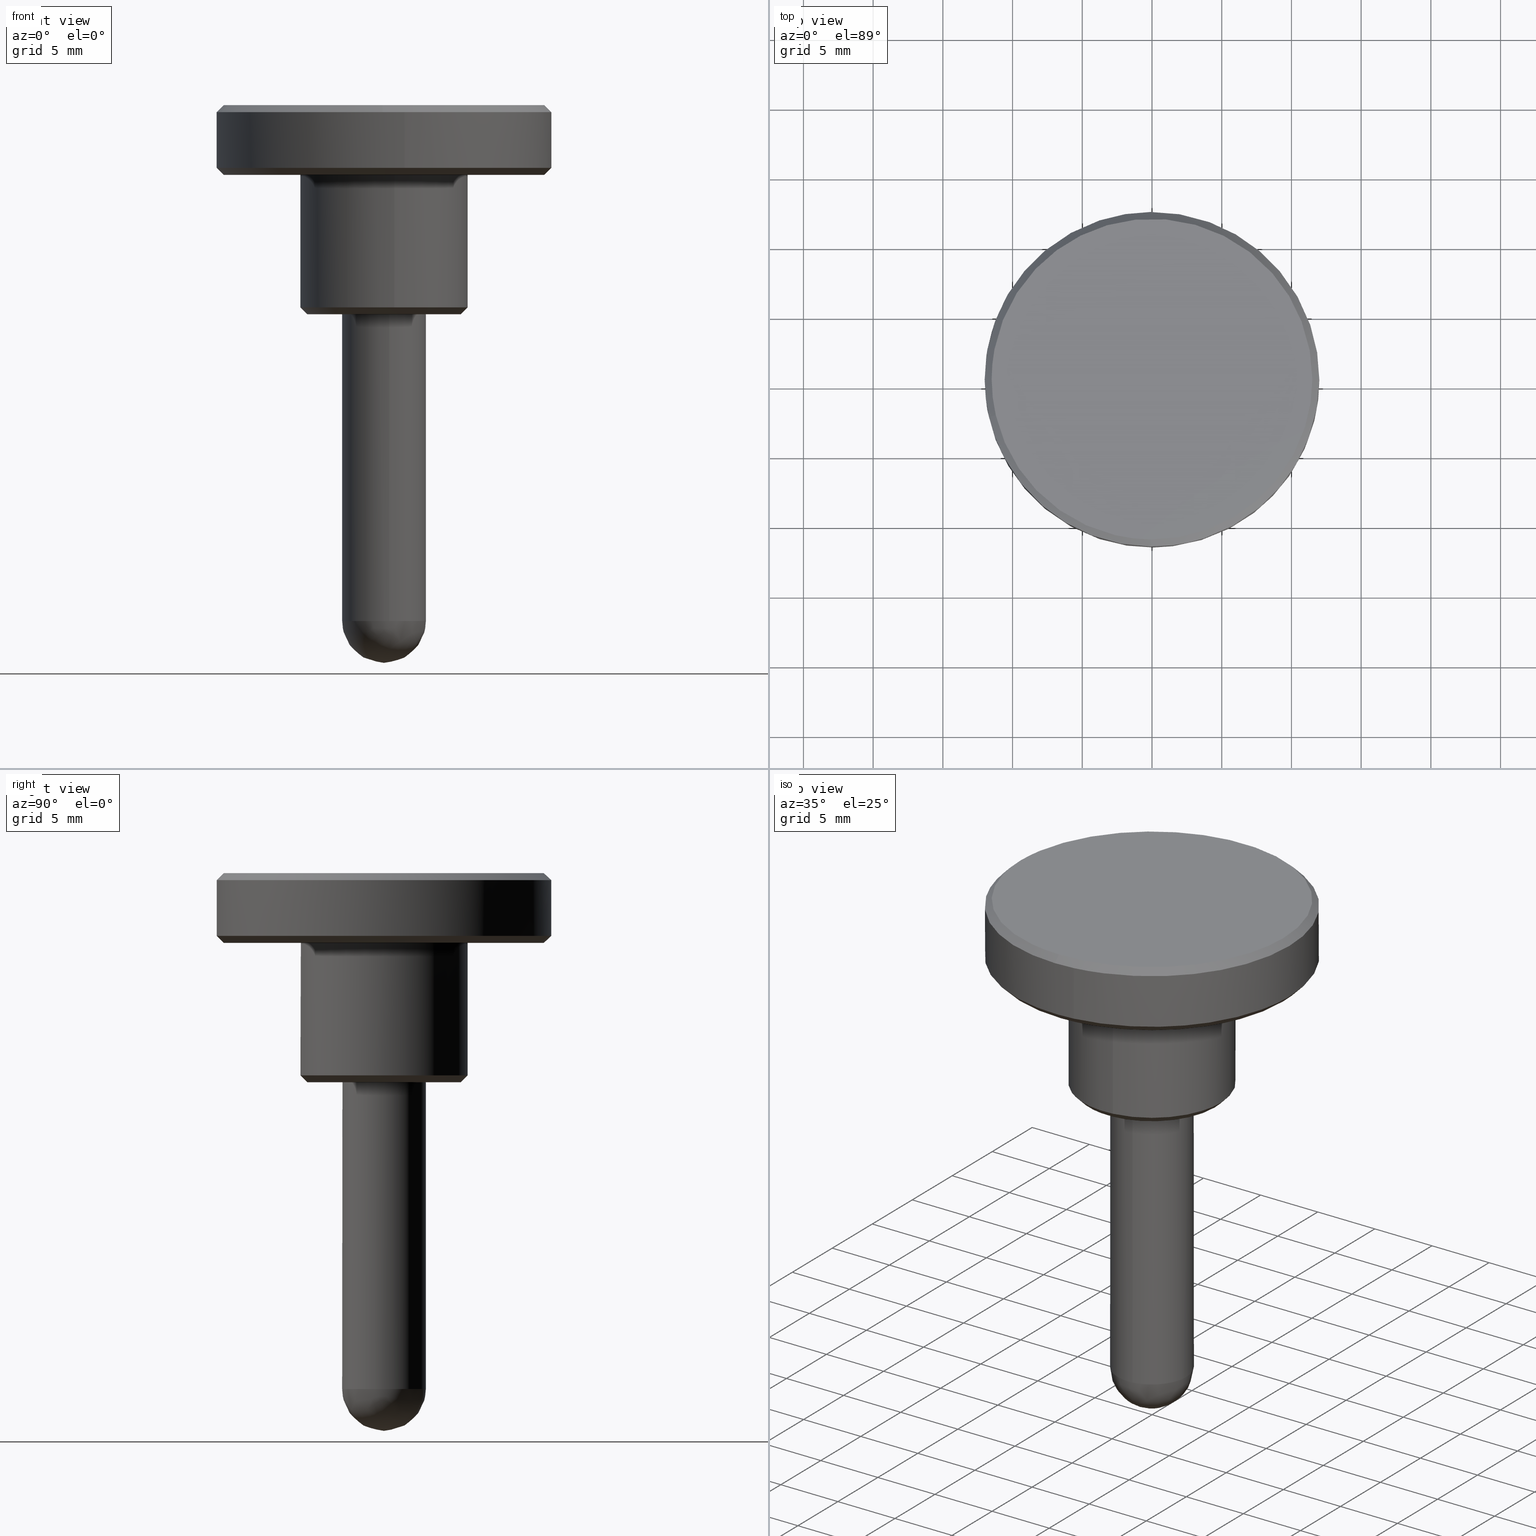
[diagram: canonical four-view strip — front | top / right | iso, engineering-drawing reading convention]
A machine part, canonical four-view strip (front | top / right | iso — engineering-drawing reading convention). The complete STEP part file that produces these views, byte-faithful:
ISO-10303-21;
HEADER;
/****************************************************************
 * Generated by software with PDE/Lib inside                    *
 * PDElib Version 4.4.1-0003, patched  Thursday August 19 11:58 *
 * International Technegroup Inc. (www.iti-oh.com)              *
 ****************************************************************/
FILE_DESCRIPTION((''),'2;1');
FILE_NAME('','2005-07-15T10:47:17',(''),(''),'','CADfix','');
FILE_SCHEMA(('AUTOMOTIVE_DESIGN'));
ENDSEC;
DATA;
#5=APPLICATION_CONTEXT('automotive design');
#6=APPLICATION_PROTOCOL_DEFINITION('Draft International Standard','automotive_design',1998,#5);
#7=PRODUCT_CONTEXT('None',#5,'mechanical');
#8=PRODUCT('knob','','None',(#7));
#9=PRODUCT_RELATED_PRODUCT_CATEGORY('part','description',(#8));
#10=PRODUCT_DEFINITION_FORMATION('None','None',#8);
#11=PRODUCT_DEFINITION_CONTEXT('part definition',#5,'design');
#12=PRODUCT_DEFINITION('None','None',#10,#11);
#18=(NAMED_UNIT(*)PLANE_ANGLE_UNIT()SI_UNIT($,.RADIAN.));
#19=DIMENSIONAL_EXPONENTS(0.0,0.0,0.0,0.0,0.0,0.0,0.0);
#20=PLANE_ANGLE_MEASURE_WITH_UNIT(PLANE_ANGLE_MEASURE(0.017453292500000),#18);
#24=(CONVERSION_BASED_UNIT('DEGREE',#20)NAMED_UNIT(#19)PLANE_ANGLE_UNIT());
#28=(NAMED_UNIT(*)SI_UNIT($,.STERADIAN.)SOLID_ANGLE_UNIT());
#32=(LENGTH_UNIT()NAMED_UNIT(*)SI_UNIT(.MILLI.,.METRE.));
#34=UNCERTAINTY_MEASURE_WITH_UNIT(LENGTH_MEASURE(0.001000000000000),#32,'DISTANCE_ACCURACY_VALUE','');
#36=(GEOMETRIC_REPRESENTATION_CONTEXT(3)GLOBAL_UNCERTAINTY_ASSIGNED_CONTEXT((#34))GLOBAL_UNIT_ASSIGNED_CONTEXT((#24,#28,#32))REPRESENTATION_CONTEXT('None','None'));
#37=AXIS2_PLACEMENT_3D('',#38,#39,#40);
#38=CARTESIAN_POINT('',(0.0,0.0,0.0));
#39=DIRECTION('',(0.0,0.0,1.0));
#40=DIRECTION('',(1.0,0.0,0.0));
#41=ADVANCED_BREP_SHAPE_REPRESENTATION('',(#37,#1160),#36);
#42=PRODUCT_DEFINITION_SHAPE('','',#12);
#43=SHAPE_DEFINITION_REPRESENTATION(#42,#41);
#44=CARTESIAN_POINT('',(-11.191331034639012,-2.591672418174083,15.012500000000003));
#45=CARTESIAN_POINT('',(-11.498961770299591,-1.263264794176366,15.012500000000003));
#46=CARTESIAN_POINT('',(-11.487062591199610,0.100246076537570,15.012499999999999));
#47=CARTESIAN_POINT('',(-11.386816514662039,11.587308667737178,15.012500000000008));
#48=CARTESIAN_POINT('',(0.100246076537570,11.487062591199610,15.012499999999999));
#49=CARTESIAN_POINT('',(11.587308667737178,11.386816514662039,15.012500000000008));
#50=CARTESIAN_POINT('',(11.487062591199610,-0.100246076537570,15.012499999999999));
#51=CARTESIAN_POINT('',(11.386816514662039,-11.587308667737178,15.012500000000008));
#52=CARTESIAN_POINT('',(-0.100246076537570,-11.487062591199610,15.012499999999999));
#53=CARTESIAN_POINT('',(-11.703100008230697,-2.710187144369708,14.487187499999997));
#54=CARTESIAN_POINT('',(-12.024798406204811,-1.321032697305058,14.487187500000001));
#55=CARTESIAN_POINT('',(-12.012355088909320,0.104830234716560,14.487187499999999));
#56=CARTESIAN_POINT('',(-11.907524854192760,12.117185323625877,14.487187500000005));
#57=CARTESIAN_POINT('',(0.104830234716560,12.012355088909320,14.487187499999999));
#58=CARTESIAN_POINT('',(12.117185323625877,11.907524854192760,14.487187500000005));
#59=CARTESIAN_POINT('',(12.012355088909320,-0.104830234716560,14.487187499999999));
#60=CARTESIAN_POINT('',(11.907524854192760,-12.117185323625877,14.487187500000005));
#61=CARTESIAN_POINT('',(-0.104830234716560,-12.012355088909320,14.487187499999999));
#69=(BOUNDED_SURFACE()B_SPLINE_SURFACE(2,1,((#44,#53),(#45,#54),(#46,#55),(#47,#56),(#48,#57),(#49,#58),(#50,#59),(#51,#60),(#52,#61)),.UNSPECIFIED.,.F.,.F.,.U.)B_SPLINE_SURFACE_WITH_KNOTS((3,2,2,2,3),(2,2),(0.0,3.184556710236832,23.088036149217022,42.991515588197210,62.894995027177401),(0.0,1.0),.UNSPECIFIED.)GEOMETRIC_REPRESENTATION_ITEM()RATIONAL_B_SPLINE_SURFACE(((0.921270302782944,0.921270302782944),(0.953137084989848,0.953137084989848),(1.0,1.0),(0.707106781186548,0.707106781186548),(1.0,1.0),(0.707106781186548,0.707106781186548),(1.0,1.0),(0.707106781186548,0.707106781186548),(1.0,1.0)))REPRESENTATION_ITEM('')SURFACE());
#70=CARTESIAN_POINT('',(-11.690617838141639,-2.707296541304560,14.499999999998540));
#71=VERTEX_POINT('',#70);
#72=CARTESIAN_POINT('',(-12.0,0.0,14.500000000000000));
#73=VERTEX_POINT('',#72);
#74=CARTESIAN_POINT('',(-11.690617838141641,-2.707296541304560,14.499999999998538));
#75=CARTESIAN_POINT('',(-12.0,-1.371325928169827,14.500000000000002));
#76=CARTESIAN_POINT('',(-12.0,0.0,14.500000000000000));
#84=(BOUNDED_CURVE()B_SPLINE_CURVE(2,(#74,#75,#76),.UNSPECIFIED.,.F.,.U.)B_SPLINE_CURVE_WITH_KNOTS((3,3),(0.961422971784261,1.0),.UNSPECIFIED.)CURVE()GEOMETRIC_REPRESENTATION_ITEM()RATIONAL_B_SPLINE_CURVE((0.923556557442221,0.954804200134539,1.0))REPRESENTATION_ITEM(''));
#85=EDGE_CURVE('',#71,#73,#84,.T.);
#86=ORIENTED_EDGE('',*,*,#85,.F.);
#87=CARTESIAN_POINT('',(-11.203508761549390,-2.594492518776765,14.999999999995520));
#88=VERTEX_POINT('',#87);
#89=CARTESIAN_POINT('',(-11.203508761549390,-2.594492518776765,14.999999999995520));
#90=CARTESIAN_POINT('',(-11.690617838141639,-2.707296541304560,14.499999999998540));
#91=QUASI_UNIFORM_CURVE('',1,(#89,#90),.UNSPECIFIED.,.F.,.U.);
#92=EDGE_CURVE('',#88,#71,#91,.T.);
#93=ORIENTED_EDGE('',*,*,#92,.F.);
#94=CARTESIAN_POINT('',(-11.500000000000000,0.0,15.0));
#95=VERTEX_POINT('',#94);
#96=CARTESIAN_POINT('',(-11.500000000000000,0.0,15.0));
#97=CARTESIAN_POINT('',(-11.500000000000000,-1.314187347856326,15.000000000000007));
#98=CARTESIAN_POINT('',(-11.203508761549386,-2.594492518776765,14.999999999995515));
#106=(BOUNDED_CURVE()B_SPLINE_CURVE(2,(#96,#97,#98),.UNSPECIFIED.,.F.,.U.)B_SPLINE_CURVE_WITH_KNOTS((3,3),(0.500000000000000,0.538577028216493),.UNSPECIFIED.)CURVE()GEOMETRIC_REPRESENTATION_ITEM()RATIONAL_B_SPLINE_CURVE((1.0,0.954804200133656,0.923556557440999))REPRESENTATION_ITEM(''));
#107=EDGE_CURVE('',#95,#88,#106,.T.);
#108=ORIENTED_EDGE('',*,*,#107,.F.);
#109=CARTESIAN_POINT('',(11.500000000000000,0.0,15.0));
#110=VERTEX_POINT('',#109);
#111=CARTESIAN_POINT('',(11.500000000000000,0.0,15.0));
#112=CARTESIAN_POINT('',(11.500000000000000,11.500000000000000,14.999999999999995));
#113=CARTESIAN_POINT('',(0.0,11.500000000000000,15.0));
#114=CARTESIAN_POINT('',(-11.500000000000000,11.500000000000000,14.999999999999995));
#115=CARTESIAN_POINT('',(-11.500000000000000,0.0,15.0));
#123=(BOUNDED_CURVE()B_SPLINE_CURVE(2,(#111,#112,#113,#114,#115),.UNSPECIFIED.,.F.,.U.)B_SPLINE_CURVE_WITH_KNOTS((3,2,3),(0.0,0.250000000000000,0.500000000000000),.UNSPECIFIED.)CURVE()GEOMETRIC_REPRESENTATION_ITEM()RATIONAL_B_SPLINE_CURVE((1.0,0.707106781186548,1.0,0.707106781186548,1.0))REPRESENTATION_ITEM(''));
#124=EDGE_CURVE('',#110,#95,#123,.T.);
#125=ORIENTED_EDGE('',*,*,#124,.F.);
#126=CARTESIAN_POINT('',(-0.100355158271587,-11.499562115243080,14.999999999994509));
#127=VERTEX_POINT('',#126);
#128=CARTESIAN_POINT('',(-0.100355158271586,-11.499562115243075,14.999999999994515));
#129=CARTESIAN_POINT('',(-0.050178534478309,-11.500000000000000,15.000000000000002));
#130=CARTESIAN_POINT('',(0.0,-11.500000000000000,15.0));
#131=CARTESIAN_POINT('',(11.500000000000000,-11.500000000000000,14.999999999999995));
#132=CARTESIAN_POINT('',(11.500000000000000,0.0,15.0));
#140=(BOUNDED_CURVE()B_SPLINE_CURVE(2,(#128,#129,#130,#131,#132),.UNSPECIFIED.,.F.,.U.)B_SPLINE_CURVE_WITH_KNOTS((3,2,3),(0.748460105663780,0.750000000000000,1.0),.UNSPECIFIED.)CURVE()GEOMETRIC_REPRESENTATION_ITEM()RATIONAL_B_SPLINE_CURVE((0.996414028097553,0.998195901564928,1.0,0.707106781186548,1.0))REPRESENTATION_ITEM(''));
#141=EDGE_CURVE('',#127,#110,#140,.T.);
#142=ORIENTED_EDGE('',*,*,#141,.F.);
#143=CARTESIAN_POINT('',(-0.104718426015426,-11.999543076774490,14.499999999995261));
#144=VERTEX_POINT('',#143);
#145=CARTESIAN_POINT('',(-0.100355158271587,-11.499562115243080,14.999999999994509));
#146=CARTESIAN_POINT('',(-0.104718426015426,-11.999543076774490,14.499999999995261));
#147=QUASI_UNIFORM_CURVE('',1,(#145,#146),.UNSPECIFIED.,.F.,.U.);
#148=EDGE_CURVE('',#127,#144,#147,.T.);
#149=ORIENTED_EDGE('',*,*,#148,.T.);
#150=CARTESIAN_POINT('',(1.489536033518189,-11.907194564835621,14.500000000000000));
#151=VERTEX_POINT('',#150);
#152=CARTESIAN_POINT('',(1.489536033518189,-11.907194564835622,14.499999999999996));
#153=CARTESIAN_POINT('',(0.747659139062377,-12.000000000000002,14.500000000000000));
#154=CARTESIAN_POINT('',(0.0,-12.0,14.500000000000000));
#155=CARTESIAN_POINT('',(-0.052360209883311,-12.000000000000007,14.500000000000005));
#156=CARTESIAN_POINT('',(-0.104718426015426,-11.999543076774490,14.499999999995262));
#164=(BOUNDED_CURVE()B_SPLINE_CURVE(2,(#152,#153,#154,#155,#156),.UNSPECIFIED.,.F.,.U.)B_SPLINE_CURVE_WITH_KNOTS((3,2,3),(0.728526070786815,0.750000000000000,0.751539894336011),.UNSPECIFIED.)CURVE()GEOMETRIC_REPRESENTATION_ITEM()RATIONAL_B_SPLINE_CURVE((0.954005429804152,0.974841727008712,1.0,0.998195901565172,0.996414028098035))REPRESENTATION_ITEM(''));
#165=EDGE_CURVE('',#151,#144,#164,.T.);
#166=ORIENTED_EDGE('',*,*,#165,.F.);
#167=CARTESIAN_POINT('',(12.0,0.0,14.500000000000000));
#168=VERTEX_POINT('',#167);
#169=CARTESIAN_POINT('',(12.0,0.0,14.500000000000000));
#170=CARTESIAN_POINT('',(11.999999999999998,-10.592383186453967,14.500000000000000));
#171=CARTESIAN_POINT('',(1.489536033518189,-11.907194564835619,14.499999999999998));
#179=(BOUNDED_CURVE()B_SPLINE_CURVE(2,(#169,#170,#171),.UNSPECIFIED.,.F.,.U.)B_SPLINE_CURVE_WITH_KNOTS((3,3),(0.500000000000000,0.728526070786814),.UNSPECIFIED.)CURVE()GEOMETRIC_REPRESENTATION_ITEM()RATIONAL_B_SPLINE_CURVE((1.0,0.732265054177836,0.954005429804150))REPRESENTATION_ITEM(''));
#180=EDGE_CURVE('',#168,#151,#179,.T.);
#181=ORIENTED_EDGE('',*,*,#180,.F.);
#182=CARTESIAN_POINT('',(-0.104706601213104,11.999543179951580,14.499999999999931));
#183=VERTEX_POINT('',#182);
#184=CARTESIAN_POINT('',(-0.104706601213104,11.999543179951583,14.499999999999932));
#185=CARTESIAN_POINT('',(-0.052354297127088,12.000000000000004,14.500000000000004));
#186=CARTESIAN_POINT('',(0.0,12.0,14.500000000000000));
#187=CARTESIAN_POINT('',(12.0,12.0,14.500000000000000));
#188=CARTESIAN_POINT('',(12.0,0.0,14.500000000000000));
#196=(BOUNDED_CURVE()B_SPLINE_CURVE(2,(#184,#185,#186,#187,#188),.UNSPECIFIED.,.F.,.U.)B_SPLINE_CURVE_WITH_KNOTS((3,2,3),(0.248460279242271,0.250000000000000,0.500000000000000),.UNSPECIFIED.)CURVE()GEOMETRIC_REPRESENTATION_ITEM()RATIONAL_B_SPLINE_CURVE((0.996414429807096,0.998196104924780,1.0,0.707106781186548,1.0))REPRESENTATION_ITEM(''));
#197=EDGE_CURVE('',#183,#168,#196,.T.);
#198=ORIENTED_EDGE('',*,*,#197,.F.);
#199=CARTESIAN_POINT('',(-12.0,0.0,14.500000000000000));
#200=CARTESIAN_POINT('',(-12.0,11.895746250062560,14.499999999999996));
#201=CARTESIAN_POINT('',(-0.104706601213104,11.999543179951583,14.499999999999932));
#209=(BOUNDED_CURVE()B_SPLINE_CURVE(2,(#199,#200,#201),.UNSPECIFIED.,.F.,.U.)B_SPLINE_CURVE_WITH_KNOTS((3,3),(0.0,0.248460279242271),.UNSPECIFIED.)CURVE()GEOMETRIC_REPRESENTATION_ITEM()RATIONAL_B_SPLINE_CURVE((1.0,0.708910676261768,0.996414429807096))REPRESENTATION_ITEM(''));
#210=EDGE_CURVE('',#73,#183,#209,.T.);
#211=ORIENTED_EDGE('',*,*,#210,.F.);
#212=EDGE_LOOP('',(#86,#93,#108,#125,#142,#149,#166,#181,#198,#211));
#213=FACE_OUTER_BOUND('',#212,.T.);
#214=ADVANCED_FACE('',(#213),#69,.T.);
#215=CARTESIAN_POINT('',(-0.100246076537570,-11.487062591199610,15.012499999999999));
#216=CARTESIAN_POINT('',(-9.149637732336018,-11.408089746632660,15.012500000000003));
#217=CARTESIAN_POINT('',(-11.191331034639012,-2.591672418174083,15.012500000000003));
#218=CARTESIAN_POINT('',(-0.104830234716560,-12.012355088909320,14.487187499999999));
#219=CARTESIAN_POINT('',(-9.568042004045996,-11.929770890922430,14.487187500000001));
#220=CARTESIAN_POINT('',(-11.703100008230697,-2.710187144369708,14.487187499999997));
#228=(BOUNDED_SURFACE()B_SPLINE_SURFACE(2,1,((#215,#218),(#216,#219),(#217,#220)),.UNSPECIFIED.,.F.,.F.,.U.)B_SPLINE_SURFACE_WITH_KNOTS((3,3),(2,2),(0.0,16.645809910381690),(0.0,1.0),.UNSPECIFIED.)GEOMETRIC_REPRESENTATION_ITEM()RATIONAL_B_SPLINE_SURFACE(((1.0,1.0),(0.753969696196700,0.753969696196700),(0.921270302782944,0.921270302782944)))REPRESENTATION_ITEM('')SURFACE());
#229=CARTESIAN_POINT('',(-0.104718426015426,-11.999543076774495,14.499999999995257));
#230=CARTESIAN_POINT('',(-9.557837021801213,-11.917046960518975,14.499999999999996));
#231=CARTESIAN_POINT('',(-11.690617838141645,-2.707296541304560,14.499999999998542));
#239=(BOUNDED_CURVE()B_SPLINE_CURVE(2,(#229,#230,#231),.UNSPECIFIED.,.F.,.U.)B_SPLINE_CURVE_WITH_KNOTS((3,3),(0.751539894336012,0.961422971784261),.UNSPECIFIED.)CURVE()GEOMETRIC_REPRESENTATION_ITEM()RATIONAL_B_SPLINE_CURVE((0.996414028098035,0.753549905437041,0.923556557442221))REPRESENTATION_ITEM(''));
#240=EDGE_CURVE('',#144,#71,#239,.T.);
#241=ORIENTED_EDGE('',*,*,#240,.F.);
#242=ORIENTED_EDGE('',*,*,#148,.F.);
#243=CARTESIAN_POINT('',(-11.203508761549381,-2.594492518776765,14.999999999995520));
#244=CARTESIAN_POINT('',(-9.159593812518914,-11.420503337153718,14.999999999999998));
#245=CARTESIAN_POINT('',(-0.100355158271586,-11.499562115243078,14.999999999994511));
#253=(BOUNDED_CURVE()B_SPLINE_CURVE(2,(#243,#244,#245),.UNSPECIFIED.,.F.,.U.)B_SPLINE_CURVE_WITH_KNOTS((3,3),(0.538577028216493,0.748460105663781),.UNSPECIFIED.)CURVE()GEOMETRIC_REPRESENTATION_ITEM()RATIONAL_B_SPLINE_CURVE((0.923556557440999,0.753549905438082,0.996414028097555))REPRESENTATION_ITEM(''));
#254=EDGE_CURVE('',#88,#127,#253,.T.);
#255=ORIENTED_EDGE('',*,*,#254,.F.);
#256=ORIENTED_EDGE('',*,*,#92,.T.);
#257=EDGE_LOOP('',(#241,#242,#255,#256));
#258=FACE_OUTER_BOUND('',#257,.T.);
#259=ADVANCED_FACE('',(#258),#228,.T.);
#260=CARTESIAN_POINT('',(9.406724469765697,-6.593647776452057,9.987500000000001));
#261=CARTESIAN_POINT('',(11.519179152623552,-3.579947343821037,9.987499999999999));
#262=CARTESIAN_POINT('',(11.487062591199660,0.100246076537570,9.987499999999999));
#263=CARTESIAN_POINT('',(11.386816514662092,11.587308667737231,9.987499999999999));
#264=CARTESIAN_POINT('',(-0.100246076537570,11.487062591199660,9.987499999999999));
#265=CARTESIAN_POINT('',(-11.587308667737231,11.386816514662092,9.987499999999999));
#266=CARTESIAN_POINT('',(-11.487062591199660,-0.100246076537570,9.987499999999999));
#267=CARTESIAN_POINT('',(-11.386816514662092,-11.587308667737231,9.987499999999999));
#268=CARTESIAN_POINT('',(0.100246076537570,-11.487062591199660,9.987499999999999));
#269=CARTESIAN_POINT('',(9.836885074599064,-6.895169047186953,10.512812500000004));
#270=CARTESIAN_POINT('',(12.045940310282912,-3.743654946785199,10.512812500000003));
#271=CARTESIAN_POINT('',(12.012355088909260,0.104830234716559,10.512812500000001));
#272=CARTESIAN_POINT('',(11.907524854192697,12.117185323625815,10.512812500000003));
#273=CARTESIAN_POINT('',(-0.104830234716559,12.012355088909260,10.512812500000001));
#274=CARTESIAN_POINT('',(-12.117185323625815,11.907524854192697,10.512812500000003));
#275=CARTESIAN_POINT('',(-12.012355088909260,-0.104830234716559,10.512812500000001));
#276=CARTESIAN_POINT('',(-11.907524854192697,-12.117185323625815,10.512812500000003));
#277=CARTESIAN_POINT('',(0.104830234716559,-12.012355088909260,10.512812500000001));
#285=(BOUNDED_SURFACE()B_SPLINE_SURFACE(2,1,((#260,#269),(#261,#270),(#262,#271),(#263,#272),(#264,#273),(#265,#274),(#266,#275),(#267,#276),(#268,#277)),.UNSPECIFIED.,.F.,.F.,.U.)B_SPLINE_SURFACE_WITH_KNOTS((3,2,2,2,3),(2,2),(0.0,7.961391775592033,27.864871214572119,47.768350653552197,67.671830092532289),(0.0,1.0),.UNSPECIFIED.)GEOMETRIC_REPRESENTATION_ITEM()RATIONAL_B_SPLINE_SURFACE(((0.859411254969543,0.859411254969543),(0.882842712474619,0.882842712474619),(1.0,1.0),(0.707106781186548,0.707106781186548),(1.0,1.0),(0.707106781186548,0.707106781186548),(1.0,1.0),(0.707106781186548,0.707106781186548),(1.0,1.0)))REPRESENTATION_ITEM('')SURFACE());
#286=CARTESIAN_POINT('',(11.500000000000000,0.0,10.0));
#287=VERTEX_POINT('',#286);
#288=CARTESIAN_POINT('',(9.416960296167627,-6.600822583619035,10.000000000000551));
#289=VERTEX_POINT('',#288);
#290=CARTESIAN_POINT('',(11.500000000000000,0.0,10.0));
#291=CARTESIAN_POINT('',(11.499999999999998,-3.629086570751550,10.0));
#292=CARTESIAN_POINT('',(9.416960296167627,-6.600822583619035,10.000000000000551));
#300=(BOUNDED_CURVE()B_SPLINE_CURVE(2,(#290,#291,#292),.UNSPECIFIED.,.F.,.U.)B_SPLINE_CURVE_WITH_KNOTS((3,3),(0.0,0.098673726203213),.UNSPECIFIED.)CURVE()GEOMETRIC_REPRESENTATION_ITEM()RATIONAL_B_SPLINE_CURVE((1.0,0.884396538880094,0.860049271925704))REPRESENTATION_ITEM(''));
#301=EDGE_CURVE('',#287,#289,#300,.T.);
#302=ORIENTED_EDGE('',*,*,#301,.F.);
#303=CARTESIAN_POINT('',(-11.500000000000000,0.0,10.0));
#304=VERTEX_POINT('',#303);
#305=CARTESIAN_POINT('',(-11.500000000000000,0.0,10.0));
#306=CARTESIAN_POINT('',(-11.500000000000000,11.500000000000000,10.000000000000002));
#307=CARTESIAN_POINT('',(0.0,11.500000000000000,10.0));
#308=CARTESIAN_POINT('',(11.500000000000000,11.500000000000000,10.000000000000002));
#309=CARTESIAN_POINT('',(11.500000000000000,0.0,10.0));
#317=(BOUNDED_CURVE()B_SPLINE_CURVE(2,(#305,#306,#307,#308,#309),.UNSPECIFIED.,.F.,.U.)B_SPLINE_CURVE_WITH_KNOTS((3,2,3),(0.500000000000000,0.750000000000000,1.0),.UNSPECIFIED.)CURVE()GEOMETRIC_REPRESENTATION_ITEM()RATIONAL_B_SPLINE_CURVE((1.0,0.707106781186548,1.0,0.707106781186548,1.0))REPRESENTATION_ITEM(''));
#318=EDGE_CURVE('',#304,#287,#317,.T.);
#319=ORIENTED_EDGE('',*,*,#318,.F.);
#320=CARTESIAN_POINT('',(0.100355158271585,-11.499562115243091,10.000000000005480));
#321=VERTEX_POINT('',#320);
#322=CARTESIAN_POINT('',(0.100355158271585,-11.499562115243096,10.000000000005475));
#323=CARTESIAN_POINT('',(0.050178534478308,-11.500000000000000,10.0));
#324=CARTESIAN_POINT('',(0.0,-11.500000000000000,10.0));
#325=CARTESIAN_POINT('',(-11.500000000000000,-11.500000000000000,10.000000000000002));
#326=CARTESIAN_POINT('',(-11.500000000000000,0.0,10.0));
#334=(BOUNDED_CURVE()B_SPLINE_CURVE(2,(#322,#323,#324,#325,#326),.UNSPECIFIED.,.F.,.U.)B_SPLINE_CURVE_WITH_KNOTS((3,2,3),(0.248460105663780,0.250000000000000,0.500000000000000),.UNSPECIFIED.)CURVE()GEOMETRIC_REPRESENTATION_ITEM()RATIONAL_B_SPLINE_CURVE((0.996414028097553,0.998195901564928,1.0,0.707106781186548,1.0))REPRESENTATION_ITEM(''));
#335=EDGE_CURVE('',#321,#304,#334,.T.);
#336=ORIENTED_EDGE('',*,*,#335,.F.);
#337=CARTESIAN_POINT('',(0.104718425980816,-11.999543076770079,10.500000000000060));
#338=VERTEX_POINT('',#337);
#339=CARTESIAN_POINT('',(0.100355158271585,-11.499562115243091,10.000000000005480));
#340=CARTESIAN_POINT('',(0.104718425980816,-11.999543076770079,10.500000000000060));
#341=QUASI_UNIFORM_CURVE('',1,(#339,#340),.UNSPECIFIED.,.F.,.U.);
#342=EDGE_CURVE('',#321,#338,#341,.T.);
#343=ORIENTED_EDGE('',*,*,#342,.T.);
#344=CARTESIAN_POINT('',(-12.0,0.0,10.500000000000000));
#345=VERTEX_POINT('',#344);
#346=CARTESIAN_POINT('',(-12.0,0.0,10.500000000000000));
#347=CARTESIAN_POINT('',(-12.0,-12.0,10.500000000000002));
#348=CARTESIAN_POINT('',(0.0,-12.0,10.500000000000000));
#349=CARTESIAN_POINT('',(0.052360209848746,-11.999999999999998,10.500000000000002));
#350=CARTESIAN_POINT('',(0.104718425980816,-11.999543076770085,10.500000000000064));
#358=(BOUNDED_CURVE()B_SPLINE_CURVE(2,(#346,#347,#348,#349,#350),.UNSPECIFIED.,.F.,.U.)B_SPLINE_CURVE_WITH_KNOTS((3,2,3),(0.0,0.250000000000000,0.251539894334997),.UNSPECIFIED.)CURVE()GEOMETRIC_REPRESENTATION_ITEM()RATIONAL_B_SPLINE_CURVE((1.0,0.707106781186548,1.0,0.998195901566361,0.996414028100383))REPRESENTATION_ITEM(''));
#359=EDGE_CURVE('',#345,#338,#358,.T.);
#360=ORIENTED_EDGE('',*,*,#359,.F.);
#361=CARTESIAN_POINT('',(-0.104706701761851,11.999543179074310,10.500000000000000));
#362=VERTEX_POINT('',#361);
#363=CARTESIAN_POINT('',(-0.104706701761851,11.999543179074310,10.499999999999996));
#364=CARTESIAN_POINT('',(-12.0,11.895746150379777,10.500000000000000));
#365=CARTESIAN_POINT('',(-12.0,0.0,10.500000000000000));
#373=(BOUNDED_CURVE()B_SPLINE_CURVE(2,(#363,#364,#365),.UNSPECIFIED.,.F.,.U.)B_SPLINE_CURVE_WITH_KNOTS((3,3),(0.751539722233697,1.0),.UNSPECIFIED.)CURVE()GEOMETRIC_REPRESENTATION_ITEM()RATIONAL_B_SPLINE_CURVE((0.996414426391288,0.708910677990972,1.0))REPRESENTATION_ITEM(''));
#374=EDGE_CURVE('',#362,#345,#373,.T.);
#375=ORIENTED_EDGE('',*,*,#374,.F.);
#376=CARTESIAN_POINT('',(12.0,0.0,10.500000000000000));
#377=VERTEX_POINT('',#376);
#378=CARTESIAN_POINT('',(12.0,0.0,10.500000000000000));
#379=CARTESIAN_POINT('',(12.0,12.0,10.500000000000002));
#380=CARTESIAN_POINT('',(0.0,12.0,10.500000000000000));
#381=CARTESIAN_POINT('',(-0.052354347404331,12.000000000000002,10.500000000000005));
#382=CARTESIAN_POINT('',(-0.104706701761851,11.999543179074310,10.499999999999996));
#390=(BOUNDED_CURVE()B_SPLINE_CURVE(2,(#378,#379,#380,#381,#382),.UNSPECIFIED.,.F.,.U.)B_SPLINE_CURVE_WITH_KNOTS((3,2,3),(0.500000000000000,0.750000000000000,0.751539722233697),.UNSPECIFIED.)CURVE()GEOMETRIC_REPRESENTATION_ITEM()RATIONAL_B_SPLINE_CURVE((1.0,0.707106781186548,1.0,0.998196103195576,0.996414426391288))REPRESENTATION_ITEM(''));
#391=EDGE_CURVE('',#377,#362,#390,.T.);
#392=ORIENTED_EDGE('',*,*,#391,.F.);
#393=CARTESIAN_POINT('',(9.826393352523558,-6.887814869862043,10.500000000000520));
#394=VERTEX_POINT('',#393);
#395=CARTESIAN_POINT('',(9.826393352523558,-6.887814869862043,10.500000000000522));
#396=CARTESIAN_POINT('',(11.999999999999996,-3.786872943391239,10.500000000000000));
#397=CARTESIAN_POINT('',(12.0,0.0,10.500000000000000));
#405=(BOUNDED_CURVE()B_SPLINE_CURVE(2,(#395,#396,#397),.UNSPECIFIED.,.F.,.U.)B_SPLINE_CURVE_WITH_KNOTS((3,3),(0.401326273796825,0.500000000000000),.UNSPECIFIED.)CURVE()GEOMETRIC_REPRESENTATION_ITEM()RATIONAL_B_SPLINE_CURVE((0.860049271925723,0.884396538880139,1.0))REPRESENTATION_ITEM(''));
#406=EDGE_CURVE('',#394,#377,#405,.T.);
#407=ORIENTED_EDGE('',*,*,#406,.F.);
#408=CARTESIAN_POINT('',(9.416960296167627,-6.600822583619035,10.000000000000551));
#409=CARTESIAN_POINT('',(9.826393352523558,-6.887814869862043,10.500000000000520));
#410=QUASI_UNIFORM_CURVE('',1,(#408,#409),.UNSPECIFIED.,.F.,.U.);
#411=EDGE_CURVE('',#289,#394,#410,.T.);
#412=ORIENTED_EDGE('',*,*,#411,.F.);
#413=EDGE_LOOP('',(#302,#319,#336,#343,#360,#375,#392,#407,#412));
#414=FACE_OUTER_BOUND('',#413,.T.);
#415=ADVANCED_FACE('',(#414),#285,.T.);
#416=CARTESIAN_POINT('',(0.100246076537570,-11.487062591199660,9.987499999999999));
#417=CARTESIAN_POINT('',(6.012851147515387,-11.435464068446271,9.987499999999999));
#418=CARTESIAN_POINT('',(9.406724469765697,-6.593647776452057,9.987500000000001));
#419=CARTESIAN_POINT('',(0.104830234716559,-12.012355088909260,10.512812500000001));
#420=CARTESIAN_POINT('',(6.287813138238249,-11.958397014557701,10.512812500000004));
#421=CARTESIAN_POINT('',(9.836885074599064,-6.895169047186953,10.512812500000004));
#429=(BOUNDED_SURFACE()B_SPLINE_SURFACE(2,1,((#416,#419),(#417,#420),(#418,#421)),.UNSPECIFIED.,.F.,.F.,.U.)B_SPLINE_SURFACE_WITH_KNOTS((3,3),(2,2),(0.0,11.860688764435860),(0.0,1.0),.UNSPECIFIED.)GEOMETRIC_REPRESENTATION_ITEM()RATIONAL_B_SPLINE_SURFACE(((1.0,1.0),(0.824264068711928,0.824264068711928),(0.859411254969543,0.859411254969543)))REPRESENTATION_ITEM('')SURFACE());
#430=CARTESIAN_POINT('',(9.416960296167627,-6.600822583619035,10.000000000000551));
#431=CARTESIAN_POINT('',(6.019393967057678,-11.447907446063551,10.000000000000002));
#432=CARTESIAN_POINT('',(0.100355158271585,-11.499562115243092,10.000000000005475));
#440=(BOUNDED_CURVE()B_SPLINE_CURVE(2,(#430,#431,#432),.UNSPECIFIED.,.F.,.U.)B_SPLINE_CURVE_WITH_KNOTS((3,3),(0.098673726203213,0.248460105663780),.UNSPECIFIED.)CURVE()GEOMETRIC_REPRESENTATION_ITEM()RATIONAL_B_SPLINE_CURVE((0.860049271925704,0.823090203821318,0.996414028097553))REPRESENTATION_ITEM(''));
#441=EDGE_CURVE('',#289,#321,#440,.T.);
#442=ORIENTED_EDGE('',*,*,#441,.F.);
#443=ORIENTED_EDGE('',*,*,#411,.T.);
#444=CARTESIAN_POINT('',(1.489525036514831,-11.907195940500550,10.500000000000000));
#445=VERTEX_POINT('',#444);
#446=CARTESIAN_POINT('',(1.489525036514831,-11.907195940500550,10.500000000000004));
#447=CARTESIAN_POINT('',(6.771178001248341,-11.246490064456887,10.500000000000002));
#448=CARTESIAN_POINT('',(9.826393352523558,-6.887814869862043,10.500000000000522));
#456=(BOUNDED_CURVE()B_SPLINE_CURVE(2,(#446,#447,#448),.UNSPECIFIED.,.F.,.U.)B_SPLINE_CURVE_WITH_KNOTS((3,3),(0.271473773337378,0.401326273796825),.UNSPECIFIED.)CURVE()GEOMETRIC_REPRESENTATION_ITEM()RATIONAL_B_SPLINE_CURVE((0.954005732299056,0.828008792508995,0.860049271925722))REPRESENTATION_ITEM(''));
#457=EDGE_CURVE('',#445,#394,#456,.T.);
#458=ORIENTED_EDGE('',*,*,#457,.F.);
#459=CARTESIAN_POINT('',(0.104718425980816,-11.999543076770085,10.500000000000064));
#460=CARTESIAN_POINT('',(0.799796352087863,-11.993477223604605,10.499999999999996));
#461=CARTESIAN_POINT('',(1.489525036514831,-11.907195940500557,10.500000000000004));
#469=(BOUNDED_CURVE()B_SPLINE_CURVE(2,(#459,#460,#461),.UNSPECIFIED.,.F.,.U.)B_SPLINE_CURVE_WITH_KNOTS((3,3),(0.251539894334997,0.271473773337378),.UNSPECIFIED.)CURVE()GEOMETRIC_REPRESENTATION_ITEM()RATIONAL_B_SPLINE_CURVE((0.996414028100383,0.973347737601678,0.954005732299056))REPRESENTATION_ITEM(''));
#470=EDGE_CURVE('',#338,#445,#469,.T.);
#471=ORIENTED_EDGE('',*,*,#470,.F.);
#472=ORIENTED_EDGE('',*,*,#342,.F.);
#473=EDGE_LOOP('',(#442,#443,#458,#471,#472));
#474=FACE_OUTER_BOUND('',#473,.T.);
#475=ADVANCED_FACE('',(#474),#429,.T.);
#476=CARTESIAN_POINT('',(-2.218132183033460,-5.019217655032625,-0.012499999999999));
#477=CARTESIAN_POINT('',(-1.135599143609664,-5.497619178731310,-0.012499999999999));
#478=CARTESIAN_POINT('',(0.047886863547327,-5.487291052814638,-0.012499999999999));
#479=CARTESIAN_POINT('',(5.535177916361964,-5.439404189267312,-0.012499999999999));
#480=CARTESIAN_POINT('',(5.487291052814638,0.047886863547327,-0.012499999999999));
#481=CARTESIAN_POINT('',(5.439404189267312,5.535177916361964,-0.012499999999999));
#482=CARTESIAN_POINT('',(-0.047886863547327,5.487291052814638,-0.012499999999999));
#483=CARTESIAN_POINT('',(-2.430471602149591,-5.499701987499018,0.512812499999944));
#484=CARTESIAN_POINT('',(-1.244308833837901,-6.023900376877514,0.512812499999944));
#485=CARTESIAN_POINT('',(0.052471021726316,-6.012583550524287,0.512812499999944));
#486=CARTESIAN_POINT('',(6.065054572250603,-5.960112528797970,0.512812499999944));
#487=CARTESIAN_POINT('',(6.012583550524287,0.052471021726316,0.512812499999944));
#488=CARTESIAN_POINT('',(5.960112528797970,6.065054572250603,0.512812499999944));
#489=CARTESIAN_POINT('',(-0.052471021726316,6.012583550524287,0.512812499999944));
#497=(BOUNDED_SURFACE()B_SPLINE_SURFACE(2,1,((#476,#483),(#477,#484),(#478,#485),(#479,#486),(#480,#487),(#481,#488),(#482,#489)),.UNSPECIFIED.,.F.,.F.,.U.)B_SPLINE_SURFACE_WITH_KNOTS((3,2,2,3),(2,2),(0.0,2.789459103767254,12.751813045793160,22.714166987819059),(0.0,1.0),.UNSPECIFIED.)GEOMETRIC_REPRESENTATION_ITEM()RATIONAL_B_SPLINE_SURFACE(((0.881905454174416,0.881905454174416),(0.917989898732233,0.917989898732233),(1.0,1.0),(0.707106781186548,0.707106781186548),(1.0,1.0),(0.707106781186548,0.707106781186548),(1.0,1.0)))REPRESENTATION_ITEM('')SURFACE());
#498=CARTESIAN_POINT('',(-2.425292591940817,-5.487982857434176,0.500000000001144));
#499=VERTEX_POINT('',#498);
#500=CARTESIAN_POINT('',(0.744759686369103,-5.953598324499980,0.499999999999945));
#501=VERTEX_POINT('',#500);
#502=CARTESIAN_POINT('',(-2.425292591940817,-5.487982857434177,0.500000000001144));
#503=CARTESIAN_POINT('',(-1.266693703526238,-6.0,0.499999999999945));
#504=CARTESIAN_POINT('',(0.0,-6.0,0.499999999999945));
#505=CARTESIAN_POINT('',(0.373825353413298,-6.0,0.499999999999945));
#506=CARTESIAN_POINT('',(0.744759686369103,-5.953598324499981,0.499999999999945));
#514=(BOUNDED_CURVE()B_SPLINE_CURVE(2,(#502,#503,#504,#505,#506),.UNSPECIFIED.,.F.,.U.)B_SPLINE_CURVE_WITH_KNOTS((3,2,3),(0.181361578459189,0.250000000000000,0.271473693119241),.UNSPECIFIED.)CURVE()GEOMETRIC_REPRESENTATION_ITEM()RATIONAL_B_SPLINE_CURVE((0.883326595751099,0.919585087122549,1.0,0.974842003609973,0.954005887971741))REPRESENTATION_ITEM(''));
#515=EDGE_CURVE('',#499,#501,#514,.T.);
#516=ORIENTED_EDGE('',*,*,#515,.F.);
#517=CARTESIAN_POINT('',(-2.223184875983272,-5.030650952635058,4.435267E-012));
#518=VERTEX_POINT('',#517);
#519=CARTESIAN_POINT('',(-2.223184875983272,-5.030650952635058,4.435267E-012));
#520=CARTESIAN_POINT('',(-2.425292591940817,-5.487982857434176,0.500000000001144));
#521=QUASI_UNIFORM_CURVE('',1,(#519,#520),.UNSPECIFIED.,.F.,.U.);
#522=EDGE_CURVE('',#518,#499,#521,.T.);
#523=ORIENTED_EDGE('',*,*,#522,.F.);
#524=CARTESIAN_POINT('',(5.500000000000000,0.0,0.0));
#525=VERTEX_POINT('',#524);
#526=CARTESIAN_POINT('',(5.500000000000000,0.0,0.0));
#527=CARTESIAN_POINT('',(5.500000000000001,-5.500000000000001,0.0));
#528=CARTESIAN_POINT('',(0.0,-5.500000000000000,0.0));
#529=CARTESIAN_POINT('',(-1.161135894940349,-5.500000000000000,0.0));
#530=CARTESIAN_POINT('',(-2.223184875983272,-5.030650952635058,4.435267E-012));
#538=(BOUNDED_CURVE()B_SPLINE_CURVE(2,(#526,#527,#528,#529,#530),.UNSPECIFIED.,.F.,.U.)B_SPLINE_CURVE_WITH_KNOTS((3,2,3),(0.500000000000000,0.750000000000000,0.818638421543056),.UNSPECIFIED.)CURVE()GEOMETRIC_REPRESENTATION_ITEM()RATIONAL_B_SPLINE_CURVE((1.0,0.707106781186548,1.0,0.919585087119919,0.883326595748727))REPRESENTATION_ITEM(''));
#539=EDGE_CURVE('',#525,#518,#538,.T.);
#540=ORIENTED_EDGE('',*,*,#539,.F.);
#541=CARTESIAN_POINT('',(-0.047995945249964,5.499790576854081,1.217588E-012));
#542=VERTEX_POINT('',#541);
#543=CARTESIAN_POINT('',(-0.047995945249964,5.499790576854081,1.217588E-012));
#544=CARTESIAN_POINT('',(-0.023998429522756,5.499999999999999,0.0));
#545=CARTESIAN_POINT('',(0.0,5.500000000000000,0.0));
#546=CARTESIAN_POINT('',(5.500000000000001,5.500000000000001,0.0));
#547=CARTESIAN_POINT('',(5.500000000000000,0.0,0.0));
#555=(BOUNDED_CURVE()B_SPLINE_CURVE(2,(#543,#544,#545,#546,#547),.UNSPECIFIED.,.F.,.U.)B_SPLINE_CURVE_WITH_KNOTS((3,2,3),(0.248460105664443,0.250000000000000,0.500000000000000),.UNSPECIFIED.)CURVE()GEOMETRIC_REPRESENTATION_ITEM()RATIONAL_B_SPLINE_CURVE((0.996414028099087,0.998195901565704,1.0,0.707106781186548,1.0))REPRESENTATION_ITEM(''));
#556=EDGE_CURVE('',#542,#525,#555,.T.);
#557=ORIENTED_EDGE('',*,*,#556,.F.);
#558=CARTESIAN_POINT('',(-0.052357932302264,5.999771549560601,0.499999999999668));
#559=VERTEX_POINT('',#558);
#560=CARTESIAN_POINT('',(-0.047995945249964,5.499790576854081,1.217588E-012));
#561=CARTESIAN_POINT('',(-0.052357932302264,5.999771549560601,0.499999999999668));
#562=QUASI_UNIFORM_CURVE('',1,(#560,#561),.UNSPECIFIED.,.F.,.U.);
#563=EDGE_CURVE('',#542,#559,#562,.T.);
#564=ORIENTED_EDGE('',*,*,#563,.T.);
#565=CARTESIAN_POINT('',(6.0,0.0,0.499999999999945));
#566=VERTEX_POINT('',#565);
#567=CARTESIAN_POINT('',(6.0,0.0,0.499999999999945));
#568=CARTESIAN_POINT('',(6.0,6.0,0.499999999999945));
#569=CARTESIAN_POINT('',(0.0,6.0,0.499999999999945));
#570=CARTESIAN_POINT('',(-0.026179464543647,6.0,0.499999999999945));
#571=CARTESIAN_POINT('',(-0.052357932302264,5.999771549560601,0.499999999999668));
#579=(BOUNDED_CURVE()B_SPLINE_CURVE(2,(#567,#568,#569,#570,#571),.UNSPECIFIED.,.F.,.U.)B_SPLINE_CURVE_WITH_KNOTS((3,2,3),(0.500000000000000,0.750000000000000,0.751539856736231),.UNSPECIFIED.)CURVE()GEOMETRIC_REPRESENTATION_ITEM()RATIONAL_B_SPLINE_CURVE((1.0,0.707106781186548,1.0,0.998195945616055,0.996414115114476))REPRESENTATION_ITEM(''));
#580=EDGE_CURVE('',#566,#559,#579,.T.);
#581=ORIENTED_EDGE('',*,*,#580,.F.);
#582=CARTESIAN_POINT('',(0.744759686369103,-5.953598324499981,0.499999999999945));
#583=CARTESIAN_POINT('',(6.000000000000003,-5.296199065360759,0.499999999999945));
#584=CARTESIAN_POINT('',(6.0,0.0,0.499999999999945));
#592=(BOUNDED_CURVE()B_SPLINE_CURVE(2,(#582,#583,#584),.UNSPECIFIED.,.F.,.U.)B_SPLINE_CURVE_WITH_KNOTS((3,3),(0.271473693119241,0.500000000000000),.UNSPECIFIED.)CURVE()GEOMETRIC_REPRESENTATION_ITEM()RATIONAL_B_SPLINE_CURVE((0.954005887971741,0.732264777576575,1.0))REPRESENTATION_ITEM(''));
#593=EDGE_CURVE('',#501,#566,#592,.T.);
#594=ORIENTED_EDGE('',*,*,#593,.F.);
#595=EDGE_LOOP('',(#516,#523,#540,#557,#564,#581,#594));
#596=FACE_OUTER_BOUND('',#595,.T.);
#597=ADVANCED_FACE('',(#596),#497,.T.);
#598=CARTESIAN_POINT('',(-0.047886863547327,5.487291052814638,-0.012499999999999));
#599=CARTESIAN_POINT('',(-5.535177916361964,5.439404189267312,-0.012499999999999));
#600=CARTESIAN_POINT('',(-5.487291052814638,-0.047886863547327,-0.012499999999999));
#601=CARTESIAN_POINT('',(-5.456395742852565,-3.588138727427808,-0.012499999999999));
#602=CARTESIAN_POINT('',(-2.218132183033460,-5.019217655032625,-0.012499999999999));
#603=CARTESIAN_POINT('',(-0.052471021726316,6.012583550524287,0.512812499999944));
#604=CARTESIAN_POINT('',(-6.065054572250603,5.960112528797970,0.512812499999944));
#605=CARTESIAN_POINT('',(-6.012583550524287,-0.052471021726316,0.512812499999944));
#606=CARTESIAN_POINT('',(-5.978730665616528,-3.931627406289205,0.512812499999944));
#607=CARTESIAN_POINT('',(-2.430471602149591,-5.499701987499018,0.512812499999944));
#615=(BOUNDED_SURFACE()B_SPLINE_SURFACE(2,1,((#598,#603),(#599,#604),(#600,#605),(#601,#606),(#602,#607)),.UNSPECIFIED.,.F.,.F.,.U.)B_SPLINE_SURFACE_WITH_KNOTS((3,2,3),(2,2),(0.0,9.962353942025903,17.135248780284549),(0.0,1.0),.UNSPECIFIED.)GEOMETRIC_REPRESENTATION_ITEM()RATIONAL_B_SPLINE_SURFACE(((1.0,1.0),(0.707106781186548,0.707106781186548),(1.0,1.0),(0.789116882454314,0.789116882454314),(0.881905454174416,0.881905454174416)))REPRESENTATION_ITEM('')SURFACE());
#616=CARTESIAN_POINT('',(-6.0,0.0,0.499999999999945));
#617=VERTEX_POINT('',#616);
#618=CARTESIAN_POINT('',(-6.0,0.0,0.499999999999945));
#619=CARTESIAN_POINT('',(-6.0,-3.908220015529379,0.499999999999945));
#620=CARTESIAN_POINT('',(-2.425292591940817,-5.487982857434177,0.500000000001144));
#628=(BOUNDED_CURVE()B_SPLINE_CURVE(2,(#618,#619,#620),.UNSPECIFIED.,.F.,.U.)B_SPLINE_CURVE_WITH_KNOTS((3,3),(0.0,0.181361578459189),.UNSPECIFIED.)CURVE()GEOMETRIC_REPRESENTATION_ITEM()RATIONAL_B_SPLINE_CURVE((1.0,0.787521694063999,0.883326595751099))REPRESENTATION_ITEM(''));
#629=EDGE_CURVE('',#617,#499,#628,.T.);
#630=ORIENTED_EDGE('',*,*,#629,.F.);
#631=CARTESIAN_POINT('',(-0.052357932302264,5.999771549560601,0.499999999999668));
#632=CARTESIAN_POINT('',(-6.0,5.947868533227037,0.499999999999945));
#633=CARTESIAN_POINT('',(-6.0,0.0,0.499999999999945));
#641=(BOUNDED_CURVE()B_SPLINE_CURVE(2,(#631,#632,#633),.UNSPECIFIED.,.F.,.U.)B_SPLINE_CURVE_WITH_KNOTS((3,3),(0.751539856736231,1.0),.UNSPECIFIED.)CURVE()GEOMETRIC_REPRESENTATION_ITEM()RATIONAL_B_SPLINE_CURVE((0.996414115114476,0.708910835570492,1.0))REPRESENTATION_ITEM(''));
#642=EDGE_CURVE('',#559,#617,#641,.T.);
#643=ORIENTED_EDGE('',*,*,#642,.F.);
#644=ORIENTED_EDGE('',*,*,#563,.F.);
#645=CARTESIAN_POINT('',(-5.500000000000000,0.0,0.0));
#646=VERTEX_POINT('',#645);
#647=CARTESIAN_POINT('',(-5.500000000000000,0.0,0.0));
#648=CARTESIAN_POINT('',(-5.500000000000000,5.452211658254742,0.0));
#649=CARTESIAN_POINT('',(-0.047995945249964,5.499790576854081,1.217588E-012));
#657=(BOUNDED_CURVE()B_SPLINE_CURVE(2,(#647,#648,#649),.UNSPECIFIED.,.F.,.U.)B_SPLINE_CURVE_WITH_KNOTS((3,3),(0.0,0.248460105664443),.UNSPECIFIED.)CURVE()GEOMETRIC_REPRESENTATION_ITEM()RATIONAL_B_SPLINE_CURVE((1.0,0.708910879620843,0.996414028099087))REPRESENTATION_ITEM(''));
#658=EDGE_CURVE('',#646,#542,#657,.T.);
#659=ORIENTED_EDGE('',*,*,#658,.F.);
#660=CARTESIAN_POINT('',(-2.223184875983272,-5.030650952635058,4.435267E-012));
#661=CARTESIAN_POINT('',(-5.500000000000001,-3.582535014178935,0.0));
#662=CARTESIAN_POINT('',(-5.500000000000000,0.0,0.0));
#670=(BOUNDED_CURVE()B_SPLINE_CURVE(2,(#660,#661,#662),.UNSPECIFIED.,.F.,.U.)B_SPLINE_CURVE_WITH_KNOTS((3,3),(0.818638421543057,1.0),.UNSPECIFIED.)CURVE()GEOMETRIC_REPRESENTATION_ITEM()RATIONAL_B_SPLINE_CURVE((0.883326595748726,0.787521694066630,1.0))REPRESENTATION_ITEM(''));
#671=EDGE_CURVE('',#518,#646,#670,.T.);
#672=ORIENTED_EDGE('',*,*,#671,.F.);
#673=ORIENTED_EDGE('',*,*,#522,.T.);
#674=EDGE_LOOP('',(#630,#643,#644,#659,#672,#673));
#675=FACE_OUTER_BOUND('',#674,.T.);
#676=ADVANCED_FACE('',(#675),#615,.T.);
#677=CARTESIAN_POINT('',(0.372384006239488,-2.976798641476615,-22.550000000000011));
#678=CARTESIAN_POINT('',(3.023198491507334,-2.645193774399663,-22.550000000000004));
#679=CARTESIAN_POINT('',(2.999885769192513,0.026179606495122,-22.550000000000001));
#680=CARTESIAN_POINT('',(2.973706162697392,3.026065375687634,-22.550000000000004));
#681=CARTESIAN_POINT('',(-0.026179606495122,2.999885769192513,-22.550000000000001));
#682=CARTESIAN_POINT('',(0.372384006239488,-2.976798641476615,0.563749999999999));
#683=CARTESIAN_POINT('',(3.023198491507334,-2.645193774399663,0.563749999999999));
#684=CARTESIAN_POINT('',(2.999885769192513,0.026179606495122,0.563749999999999));
#685=CARTESIAN_POINT('',(2.973706162697392,3.026065375687634,0.563749999999999));
#686=CARTESIAN_POINT('',(-0.026179606495122,2.999885769192513,0.563749999999999));
#694=(BOUNDED_SURFACE()B_SPLINE_SURFACE(2,1,((#677,#682),(#678,#683),(#679,#684),(#680,#685),(#681,#686)),.UNSPECIFIED.,.F.,.F.,.U.)B_SPLINE_SURFACE_WITH_KNOTS((3,2,3),(2,2),(0.0,4.572917728598967,9.543480477076107),(0.0,23.113750000000000),.UNSPECIFIED.)GEOMETRIC_REPRESENTATION_ITEM()RATIONAL_B_SPLINE_SURFACE(((0.956886118190660,0.956886118190660),(0.730538238691624,0.730538238691624),(1.0,1.0),(0.707106781186548,0.707106781186548),(1.0,1.0)))REPRESENTATION_ITEM('')SURFACE());
#695=CARTESIAN_POINT('',(0.372384006280671,-2.976798641471465,-22.0));
#696=VERTEX_POINT('',#695);
#697=CARTESIAN_POINT('',(3.0,0.0,-22.0));
#698=VERTEX_POINT('',#697);
#699=CARTESIAN_POINT('',(0.372384006280671,-2.976798641471465,-21.999999999999996));
#700=CARTESIAN_POINT('',(3.0,-2.648095800376845,-22.000000000000004));
#701=CARTESIAN_POINT('',(3.0,0.0,-22.0));
#709=(BOUNDED_CURVE()B_SPLINE_CURVE(2,(#699,#700,#701),.UNSPECIFIED.,.F.,.U.)B_SPLINE_CURVE_WITH_KNOTS((3,3),(0.771473928975367,1.0),.UNSPECIFIED.)CURVE()GEOMETRIC_REPRESENTATION_ITEM()RATIONAL_B_SPLINE_CURVE((0.954005430265663,0.732265053899215,1.0))REPRESENTATION_ITEM(''));
#710=EDGE_CURVE('',#696,#698,#709,.T.);
#711=ORIENTED_EDGE('',*,*,#710,.T.);
#712=CARTESIAN_POINT('',(-0.026179606549015,2.999885769192043,-22.0));
#713=VERTEX_POINT('',#712);
#714=CARTESIAN_POINT('',(3.0,0.0,-22.0));
#715=CARTESIAN_POINT('',(3.0,3.0,-22.000000000000007));
#716=CARTESIAN_POINT('',(0.0,3.0,-22.0));
#717=CARTESIAN_POINT('',(-0.013090052516001,3.0,-22.0));
#718=CARTESIAN_POINT('',(-0.026179606549015,2.999885769192043,-22.0));
#726=(BOUNDED_CURVE()B_SPLINE_CURVE(2,(#714,#715,#716,#717,#718),.UNSPECIFIED.,.F.,.U.)B_SPLINE_CURVE_WITH_KNOTS((3,2,3),(0.0,0.250000000000000,0.251539894341316),.UNSPECIFIED.)CURVE()GEOMETRIC_REPRESENTATION_ITEM()RATIONAL_B_SPLINE_CURVE((1.0,0.707106781186548,1.0,0.998195901558957,0.996414028085759))REPRESENTATION_ITEM(''));
#727=EDGE_CURVE('',#698,#713,#726,.T.);
#728=ORIENTED_EDGE('',*,*,#727,.T.);
#729=CARTESIAN_POINT('',(-0.026179606542849,2.999885769192097,4.440892E-016));
#730=VERTEX_POINT('',#729);
#731=CARTESIAN_POINT('',(-0.026179606549015,2.999885769192043,-22.0));
#732=CARTESIAN_POINT('',(-0.026179606542849,2.999885769192097,4.440892E-016));
#733=QUASI_UNIFORM_CURVE('',1,(#731,#732),.UNSPECIFIED.,.F.,.U.);
#734=EDGE_CURVE('',#713,#730,#733,.T.);
#735=ORIENTED_EDGE('',*,*,#734,.T.);
#736=CARTESIAN_POINT('',(3.0,0.0,0.0));
#737=VERTEX_POINT('',#736);
#738=CARTESIAN_POINT('',(-0.026179606542849,2.999885769192098,4.440892E-016));
#739=CARTESIAN_POINT('',(-0.013090052509834,3.0,0.0));
#740=CARTESIAN_POINT('',(0.0,3.0,0.0));
#741=CARTESIAN_POINT('',(3.0,3.0,0.0));
#742=CARTESIAN_POINT('',(3.0,0.0,0.0));
#750=(BOUNDED_CURVE()B_SPLINE_CURVE(2,(#738,#739,#740,#741,#742),.UNSPECIFIED.,.F.,.U.)B_SPLINE_CURVE_WITH_KNOTS((3,2,3),(0.248460105659408,0.250000000000000,0.500000000000000),.UNSPECIFIED.)CURVE()GEOMETRIC_REPRESENTATION_ITEM()RATIONAL_B_SPLINE_CURVE((0.996414028087435,0.998195901559806,1.0,0.707106781186548,1.0))REPRESENTATION_ITEM(''));
#751=EDGE_CURVE('',#730,#737,#750,.T.);
#752=ORIENTED_EDGE('',*,*,#751,.T.);
#753=CARTESIAN_POINT('',(0.372384006283241,-2.976798641471143,4.060860E-016));
#754=VERTEX_POINT('',#753);
#755=CARTESIAN_POINT('',(3.0,0.0,0.0));
#756=CARTESIAN_POINT('',(3.0,-2.648095800372248,0.0));
#757=CARTESIAN_POINT('',(0.372384006283241,-2.976798641471142,4.060860E-016));
#765=(BOUNDED_CURVE()B_SPLINE_CURVE(2,(#755,#756,#757),.UNSPECIFIED.,.F.,.U.)B_SPLINE_CURVE_WITH_KNOTS((3,3),(0.500000000000000,0.728526071024342),.UNSPECIFIED.)CURVE()GEOMETRIC_REPRESENTATION_ITEM()RATIONAL_B_SPLINE_CURVE((1.0,0.732265053899555,0.954005430265099))REPRESENTATION_ITEM(''));
#766=EDGE_CURVE('',#737,#754,#765,.T.);
#767=ORIENTED_EDGE('',*,*,#766,.T.);
#768=CARTESIAN_POINT('',(0.372384006280671,-2.976798641471465,-22.0));
#769=CARTESIAN_POINT('',(0.372384006283241,-2.976798641471143,4.060860E-016));
#770=QUASI_UNIFORM_CURVE('',1,(#768,#769),.UNSPECIFIED.,.F.,.U.);
#771=EDGE_CURVE('',#696,#754,#770,.T.);
#772=ORIENTED_EDGE('',*,*,#771,.F.);
#773=EDGE_LOOP('',(#711,#728,#735,#752,#767,#772));
#774=FACE_OUTER_BOUND('',#773,.T.);
#775=ADVANCED_FACE('',(#774),#694,.T.);
#776=CARTESIAN_POINT('',(-0.026179606495122,2.999885769192513,-22.550000000000001));
#777=CARTESIAN_POINT('',(-3.026065375687634,2.973706162697392,-22.550000000000004));
#778=CARTESIAN_POINT('',(-2.999885769192513,-0.026179606495122,-22.550000000000001));
#779=CARTESIAN_POINT('',(-2.973706162697392,-3.026065375687634,-22.550000000000004));
#780=CARTESIAN_POINT('',(0.026179606495122,-2.999885769192513,-22.550000000000001));
#781=CARTESIAN_POINT('',(0.199950476874521,-2.998369293780826,-22.550000000000008));
#782=CARTESIAN_POINT('',(0.372384006239488,-2.976798641476615,-22.550000000000011));
#783=CARTESIAN_POINT('',(-0.026179606495122,2.999885769192513,0.563749999999999));
#784=CARTESIAN_POINT('',(-3.026065375687634,2.973706162697392,0.563749999999999));
#785=CARTESIAN_POINT('',(-2.999885769192513,-0.026179606495122,0.563749999999999));
#786=CARTESIAN_POINT('',(-2.973706162697392,-3.026065375687634,0.563749999999999));
#787=CARTESIAN_POINT('',(0.026179606495122,-2.999885769192513,0.563749999999999));
#788=CARTESIAN_POINT('',(0.199950476874521,-2.998369293780826,0.563749999999999));
#789=CARTESIAN_POINT('',(0.372384006239488,-2.976798641476615,0.563749999999999));
#797=(BOUNDED_SURFACE()B_SPLINE_SURFACE(2,1,((#776,#783),(#777,#784),(#778,#785),(#779,#786),(#780,#787),(#781,#788),(#782,#789)),.UNSPECIFIED.,.F.,.F.,.U.)B_SPLINE_SURFACE_WITH_KNOTS((3,2,2,3),(2,2),(0.0,4.970562748477139,9.941125496954278,10.338770516832451),(0.0,23.113750000000000),.UNSPECIFIED.)GEOMETRIC_REPRESENTATION_ITEM()RATIONAL_B_SPLINE_SURFACE(((1.0,1.0),(0.707106781186548,0.707106781186548),(1.0,1.0),(0.707106781186548,0.707106781186548),(1.0,1.0),(0.976568542494924,0.976568542494924),(0.956886118190660,0.956886118190660)))REPRESENTATION_ITEM('')SURFACE());
#798=CARTESIAN_POINT('',(-3.0,0.0,-22.0));
#799=VERTEX_POINT('',#798);
#800=CARTESIAN_POINT('',(-3.0,0.0,-22.0));
#801=CARTESIAN_POINT('',(-3.0,-3.0,-22.000000000000007));
#802=CARTESIAN_POINT('',(0.0,-3.0,-22.0));
#803=CARTESIAN_POINT('',(0.186914782642149,-3.000000000000000,-22.000000000000004));
#804=CARTESIAN_POINT('',(0.372384006280671,-2.976798641471464,-22.000000000000004));
#812=(BOUNDED_CURVE()B_SPLINE_CURVE(2,(#800,#801,#802,#803,#804),.UNSPECIFIED.,.F.,.U.)B_SPLINE_CURVE_WITH_KNOTS((3,2,3),(0.500000000000000,0.750000000000000,0.771473928975368),.UNSPECIFIED.)CURVE()GEOMETRIC_REPRESENTATION_ITEM()RATIONAL_B_SPLINE_CURVE((1.0,0.707106781186548,1.0,0.974841727287333,0.954005430265663))REPRESENTATION_ITEM(''));
#813=EDGE_CURVE('',#799,#696,#812,.T.);
#814=ORIENTED_EDGE('',*,*,#813,.T.);
#815=ORIENTED_EDGE('',*,*,#771,.T.);
#816=CARTESIAN_POINT('',(-3.0,0.0,0.0));
#817=VERTEX_POINT('',#816);
#818=CARTESIAN_POINT('',(0.372384006283241,-2.976798641471143,4.060860E-016));
#819=CARTESIAN_POINT('',(0.186914782644748,-3.000000000000000,0.0));
#820=CARTESIAN_POINT('',(0.0,-3.0,0.0));
#821=CARTESIAN_POINT('',(-3.0,-3.0,0.0));
#822=CARTESIAN_POINT('',(-3.0,0.0,0.0));
#830=(BOUNDED_CURVE()B_SPLINE_CURVE(2,(#818,#819,#820,#821,#822),.UNSPECIFIED.,.F.,.U.)B_SPLINE_CURVE_WITH_KNOTS((3,2,3),(0.728526071024341,0.750000000000000,1.0),.UNSPECIFIED.)CURVE()GEOMETRIC_REPRESENTATION_ITEM()RATIONAL_B_SPLINE_CURVE((0.954005430265098,0.974841727286991,1.0,0.707106781186548,1.0))REPRESENTATION_ITEM(''));
#831=EDGE_CURVE('',#754,#817,#830,.T.);
#832=ORIENTED_EDGE('',*,*,#831,.T.);
#833=CARTESIAN_POINT('',(-3.0,0.0,0.0));
#834=CARTESIAN_POINT('',(-3.000000000000001,2.973933631690304,0.0));
#835=CARTESIAN_POINT('',(-0.026179606542849,2.999885769192098,4.440892E-016));
#843=(BOUNDED_CURVE()B_SPLINE_CURVE(2,(#833,#834,#835),.UNSPECIFIED.,.F.,.U.)B_SPLINE_CURVE_WITH_KNOTS((3,3),(0.0,0.248460105659408),.UNSPECIFIED.)CURVE()GEOMETRIC_REPRESENTATION_ITEM()RATIONAL_B_SPLINE_CURVE((1.0,0.708910879626742,0.996414028087435))REPRESENTATION_ITEM(''));
#844=EDGE_CURVE('',#817,#730,#843,.T.);
#845=ORIENTED_EDGE('',*,*,#844,.T.);
#846=ORIENTED_EDGE('',*,*,#734,.F.);
#847=CARTESIAN_POINT('',(-0.026179606549015,2.999885769192043,-21.999999999999996));
#848=CARTESIAN_POINT('',(-3.000000000000001,2.973933631678077,-21.999999999999996));
#849=CARTESIAN_POINT('',(-3.0,0.0,-22.0));
#857=(BOUNDED_CURVE()B_SPLINE_CURVE(2,(#847,#848,#849),.UNSPECIFIED.,.F.,.U.)B_SPLINE_CURVE_WITH_KNOTS((3,3),(0.251539894341316,0.500000000000000),.UNSPECIFIED.)CURVE()GEOMETRIC_REPRESENTATION_ITEM()RATIONAL_B_SPLINE_CURVE((0.996414028085759,0.708910879627590,1.0))REPRESENTATION_ITEM(''));
#858=EDGE_CURVE('',#713,#799,#857,.T.);
#859=ORIENTED_EDGE('',*,*,#858,.T.);
#860=EDGE_LOOP('',(#814,#815,#832,#845,#846,#859));
#861=FACE_OUTER_BOUND('',#860,.T.);
#862=ADVANCED_FACE('',(#861),#797,.T.);
#863=CARTESIAN_POINT('',(0.744768012478976,-5.953597282953231,0.262499999999943));
#864=CARTESIAN_POINT('',(6.046396983014668,-5.290387548799326,0.262499999999943));
#865=CARTESIAN_POINT('',(5.999771538385026,0.052359212990243,0.262499999999943));
#866=CARTESIAN_POINT('',(5.947412325394783,6.052130751375269,0.262499999999943));
#867=CARTESIAN_POINT('',(-0.052359212990243,5.999771538385026,0.262499999999943));
#868=CARTESIAN_POINT('',(0.744768012478976,-5.953597282953231,10.243437500000006));
#869=CARTESIAN_POINT('',(6.046396983014668,-5.290387548799326,10.243437500000004));
#870=CARTESIAN_POINT('',(5.999771538385026,0.052359212990243,10.243437500000001));
#871=CARTESIAN_POINT('',(5.947412325394783,6.052130751375269,10.243437500000004));
#872=CARTESIAN_POINT('',(-0.052359212990243,5.999771538385026,10.243437500000001));
#880=(BOUNDED_SURFACE()B_SPLINE_SURFACE(2,1,((#863,#868),(#864,#869),(#865,#870),(#866,#871),(#867,#872)),.UNSPECIFIED.,.F.,.F.,.U.)B_SPLINE_SURFACE_WITH_KNOTS((3,2,3),(2,2),(0.0,9.145835457197935,19.086960954152211),(0.0,9.980937500000064),.UNSPECIFIED.)GEOMETRIC_REPRESENTATION_ITEM()RATIONAL_B_SPLINE_SURFACE(((0.956886118190660,0.956886118190660),(0.730538238691624,0.730538238691624),(1.0,1.0),(0.707106781186548,0.707106781186548),(1.0,1.0)))REPRESENTATION_ITEM('')SURFACE());
#881=ORIENTED_EDGE('',*,*,#593,.T.);
#882=ORIENTED_EDGE('',*,*,#580,.T.);
#883=CARTESIAN_POINT('',(-0.052357672670020,5.999771551826802,10.0));
#884=VERTEX_POINT('',#883);
#885=CARTESIAN_POINT('',(-0.052357932302264,5.999771549560601,0.499999999999668));
#886=CARTESIAN_POINT('',(-0.052357672670020,5.999771551826802,10.0));
#887=QUASI_UNIFORM_CURVE('',1,(#885,#886),.UNSPECIFIED.,.F.,.U.);
#888=EDGE_CURVE('',#559,#884,#887,.T.);
#889=ORIENTED_EDGE('',*,*,#888,.T.);
#890=CARTESIAN_POINT('',(6.0,0.0,10.0));
#891=VERTEX_POINT('',#890);
#892=CARTESIAN_POINT('',(-0.052357672670020,5.999771551826802,10.0));
#893=CARTESIAN_POINT('',(-0.026179334720109,6.000000000000001,10.0));
#894=CARTESIAN_POINT('',(0.0,6.0,10.0));
#895=CARTESIAN_POINT('',(6.0,6.0,10.000000000000002));
#896=CARTESIAN_POINT('',(6.0,0.0,10.0));
#904=(BOUNDED_CURVE()B_SPLINE_CURVE(2,(#892,#893,#894,#895,#896),.UNSPECIFIED.,.F.,.U.)B_SPLINE_CURVE_WITH_KNOTS((3,2,3),(0.248460150886118,0.250000000000000,0.500000000000000),.UNSPECIFIED.)CURVE()GEOMETRIC_REPRESENTATION_ITEM()RATIONAL_B_SPLINE_CURVE((0.996414132754732,0.998195954546192,1.0,0.707106781186548,1.0))REPRESENTATION_ITEM(''));
#905=EDGE_CURVE('',#884,#891,#904,.T.);
#906=ORIENTED_EDGE('',*,*,#905,.T.);
#907=CARTESIAN_POINT('',(0.744768012501258,-5.953597282950446,10.0));
#908=VERTEX_POINT('',#907);
#909=CARTESIAN_POINT('',(6.0,0.0,10.0));
#910=CARTESIAN_POINT('',(6.0,-5.296191600861432,10.0));
#911=CARTESIAN_POINT('',(0.744768012501258,-5.953597282950446,10.0));
#919=(BOUNDED_CURVE()B_SPLINE_CURVE(2,(#909,#910,#911),.UNSPECIFIED.,.F.,.U.)B_SPLINE_CURVE_WITH_KNOTS((3,3),(0.500000000000000,0.728526071028037),.UNSPECIFIED.)CURVE()GEOMETRIC_REPRESENTATION_ITEM()RATIONAL_B_SPLINE_CURVE((1.0,0.732265053895227,0.954005430272270))REPRESENTATION_ITEM(''));
#920=EDGE_CURVE('',#891,#908,#919,.T.);
#921=ORIENTED_EDGE('',*,*,#920,.T.);
#922=CARTESIAN_POINT('',(0.744759686369103,-5.953598324499980,0.499999999999945));
#923=CARTESIAN_POINT('',(0.744768012501258,-5.953597282950446,10.0));
#924=QUASI_UNIFORM_CURVE('',1,(#922,#923),.UNSPECIFIED.,.F.,.U.);
#925=EDGE_CURVE('',#501,#908,#924,.T.);
#926=ORIENTED_EDGE('',*,*,#925,.F.);
#927=EDGE_LOOP('',(#881,#882,#889,#906,#921,#926));
#928=FACE_OUTER_BOUND('',#927,.T.);
#929=ADVANCED_FACE('',(#928),#880,.T.);
#930=CARTESIAN_POINT('',(-0.052359212990243,5.999771538385026,0.262499999999943));
#931=CARTESIAN_POINT('',(-6.052130751375269,5.947412325394783,0.262499999999943));
#932=CARTESIAN_POINT('',(-5.999771538385026,-0.052359212990243,0.262499999999943));
#933=CARTESIAN_POINT('',(-5.947412325394783,-6.052130751375269,0.262499999999943));
#934=CARTESIAN_POINT('',(0.052359212990243,-5.999771538385026,0.262499999999943));
#935=CARTESIAN_POINT('',(0.399900953749042,-5.996738587561654,0.262499999999943));
#936=CARTESIAN_POINT('',(0.744768012478976,-5.953597282953231,0.262499999999943));
#937=CARTESIAN_POINT('',(-0.052359212990243,5.999771538385026,10.243437500000001));
#938=CARTESIAN_POINT('',(-6.052130751375269,5.947412325394783,10.243437500000004));
#939=CARTESIAN_POINT('',(-5.999771538385026,-0.052359212990243,10.243437500000001));
#940=CARTESIAN_POINT('',(-5.947412325394783,-6.052130751375269,10.243437500000004));
#941=CARTESIAN_POINT('',(0.052359212990243,-5.999771538385026,10.243437500000001));
#942=CARTESIAN_POINT('',(0.399900953749042,-5.996738587561654,10.243437500000002));
#943=CARTESIAN_POINT('',(0.744768012478976,-5.953597282953231,10.243437500000006));
#951=(BOUNDED_SURFACE()B_SPLINE_SURFACE(2,1,((#930,#937),(#931,#938),(#932,#939),(#933,#940),(#934,#941),(#935,#942),(#936,#943)),.UNSPECIFIED.,.F.,.F.,.U.)B_SPLINE_SURFACE_WITH_KNOTS((3,2,2,3),(2,2),(0.0,9.941125496954278,19.882250993908560,20.677541033664902),(0.0,9.980937500000064),.UNSPECIFIED.)GEOMETRIC_REPRESENTATION_ITEM()RATIONAL_B_SPLINE_SURFACE(((1.0,1.0),(0.707106781186548,0.707106781186548),(1.0,1.0),(0.707106781186548,0.707106781186548),(1.0,1.0),(0.976568542494924,0.976568542494924),(0.956886118190660,0.956886118190660)))REPRESENTATION_ITEM('')SURFACE());
#952=ORIENTED_EDGE('',*,*,#629,.T.);
#953=ORIENTED_EDGE('',*,*,#515,.T.);
#954=ORIENTED_EDGE('',*,*,#925,.T.);
#955=CARTESIAN_POINT('',(-6.0,0.0,10.0));
#956=VERTEX_POINT('',#955);
#957=CARTESIAN_POINT('',(0.744768012501258,-5.953597282950446,10.0));
#958=CARTESIAN_POINT('',(0.373829565223509,-6.0,9.999999999999998));
#959=CARTESIAN_POINT('',(0.0,-6.0,10.0));
#960=CARTESIAN_POINT('',(-6.0,-6.0,10.000000000000002));
#961=CARTESIAN_POINT('',(-6.0,0.0,10.0));
#969=(BOUNDED_CURVE()B_SPLINE_CURVE(2,(#957,#958,#959,#960,#961),.UNSPECIFIED.,.F.,.U.)B_SPLINE_CURVE_WITH_KNOTS((3,2,3),(0.728526071028036,0.750000000000000,1.0),.UNSPECIFIED.)CURVE()GEOMETRIC_REPRESENTATION_ITEM()RATIONAL_B_SPLINE_CURVE((0.954005430272269,0.974841727291321,1.0,0.707106781186548,1.0))REPRESENTATION_ITEM(''));
#970=EDGE_CURVE('',#908,#956,#969,.T.);
#971=ORIENTED_EDGE('',*,*,#970,.T.);
#972=CARTESIAN_POINT('',(-6.0,0.0,10.0));
#973=CARTESIAN_POINT('',(-6.0,5.947868790623056,9.999999999999998));
#974=CARTESIAN_POINT('',(-0.052357672670020,5.999771551826802,10.0));
#982=(BOUNDED_CURVE()B_SPLINE_CURVE(2,(#972,#973,#974),.UNSPECIFIED.,.F.,.U.)B_SPLINE_CURVE_WITH_KNOTS((3,3),(0.0,0.248460150886118),.UNSPECIFIED.)CURVE()GEOMETRIC_REPRESENTATION_ITEM()RATIONAL_B_SPLINE_CURVE((1.0,0.708910826640356,0.996414132754732))REPRESENTATION_ITEM(''));
#983=EDGE_CURVE('',#956,#884,#982,.T.);
#984=ORIENTED_EDGE('',*,*,#983,.T.);
#985=ORIENTED_EDGE('',*,*,#888,.F.);
#986=ORIENTED_EDGE('',*,*,#642,.T.);
#987=EDGE_LOOP('',(#952,#953,#954,#971,#984,#985,#986));
#988=FACE_OUTER_BOUND('',#987,.T.);
#989=ADVANCED_FACE('',(#988),#951,.T.);
#990=CARTESIAN_POINT('',(1.489536024957952,-11.907194565906458,10.399999999999999));
#991=CARTESIAN_POINT('',(12.092793966029335,-10.580775097598652,10.399999999999999));
#992=CARTESIAN_POINT('',(11.999543076770051,0.104718425980487,10.400000000000000));
#993=CARTESIAN_POINT('',(11.894824650789566,12.104261502750537,10.399999999999999));
#994=CARTESIAN_POINT('',(-0.104718425980487,11.999543076770051,10.400000000000000));
#995=CARTESIAN_POINT('',(1.489536024957952,-11.907194565906458,14.602500000000010));
#996=CARTESIAN_POINT('',(12.092793966029335,-10.580775097598652,14.602500000000004));
#997=CARTESIAN_POINT('',(11.999543076770051,0.104718425980487,14.602499999999999));
#998=CARTESIAN_POINT('',(11.894824650789566,12.104261502750537,14.602499999999997));
#999=CARTESIAN_POINT('',(-0.104718425980487,11.999543076770051,14.602499999999999));
#1007=(BOUNDED_SURFACE()B_SPLINE_SURFACE(2,1,((#990,#995),(#991,#996),(#992,#997),(#993,#998),(#994,#999)),.UNSPECIFIED.,.F.,.F.,.U.)B_SPLINE_SURFACE_WITH_KNOTS((3,2,3),(2,2),(0.0,18.291670914395869,38.173921908304429),(0.0,4.202500000000006),.UNSPECIFIED.)GEOMETRIC_REPRESENTATION_ITEM()RATIONAL_B_SPLINE_SURFACE(((0.956886118190660,0.956886118190660),(0.730538238691624,0.730538238691624),(1.0,1.0),(0.707106781186548,0.707106781186548),(1.0,1.0)))REPRESENTATION_ITEM('')SURFACE());
#1008=ORIENTED_EDGE('',*,*,#180,.T.);
#1009=CARTESIAN_POINT('',(1.489525036514831,-11.907195940500550,10.500000000000000));
#1010=CARTESIAN_POINT('',(1.489536033518189,-11.907194564835621,14.500000000000000));
#1011=QUASI_UNIFORM_CURVE('',1,(#1009,#1010),.UNSPECIFIED.,.F.,.U.);
#1012=EDGE_CURVE('',#445,#151,#1011,.T.);
#1013=ORIENTED_EDGE('',*,*,#1012,.F.);
#1014=ORIENTED_EDGE('',*,*,#457,.T.);
#1015=ORIENTED_EDGE('',*,*,#406,.T.);
#1016=ORIENTED_EDGE('',*,*,#391,.T.);
#1017=CARTESIAN_POINT('',(-0.104706701761851,11.999543179074310,10.500000000000000));
#1018=CARTESIAN_POINT('',(-0.104706601213104,11.999543179951580,14.499999999999931));
#1019=QUASI_UNIFORM_CURVE('',1,(#1017,#1018),.UNSPECIFIED.,.F.,.U.);
#1020=EDGE_CURVE('',#362,#183,#1019,.T.);
#1021=ORIENTED_EDGE('',*,*,#1020,.T.);
#1022=ORIENTED_EDGE('',*,*,#197,.T.);
#1023=EDGE_LOOP('',(#1008,#1013,#1014,#1015,#1016,#1021,#1022));
#1024=FACE_OUTER_BOUND('',#1023,.T.);
#1025=ADVANCED_FACE('',(#1024),#1007,.T.);
#1026=CARTESIAN_POINT('',(-0.104718425980487,11.999543076770051,10.400000000000000));
#1027=CARTESIAN_POINT('',(-12.104261502750537,11.894824650789566,10.399999999999999));
#1028=CARTESIAN_POINT('',(-11.999543076770051,-0.104718425980487,10.400000000000000));
#1029=CARTESIAN_POINT('',(-11.894824650789566,-12.104261502750537,10.399999999999999));
#1030=CARTESIAN_POINT('',(0.104718425980487,-11.999543076770051,10.400000000000000));
#1031=CARTESIAN_POINT('',(0.799801907498083,-11.993477175123314,10.400000000000002));
#1032=CARTESIAN_POINT('',(1.489536024957952,-11.907194565906458,10.399999999999999));
#1033=CARTESIAN_POINT('',(-0.104718425980487,11.999543076770051,14.602499999999999));
#1034=CARTESIAN_POINT('',(-12.104261502750537,11.894824650789566,14.602499999999997));
#1035=CARTESIAN_POINT('',(-11.999543076770051,-0.104718425980487,14.602499999999999));
#1036=CARTESIAN_POINT('',(-11.894824650789566,-12.104261502750537,14.602499999999997));
#1037=CARTESIAN_POINT('',(0.104718425980487,-11.999543076770051,14.602499999999999));
#1038=CARTESIAN_POINT('',(0.799801907498083,-11.993477175123314,14.602500000000004));
#1039=CARTESIAN_POINT('',(1.489536024957952,-11.907194565906458,14.602500000000010));
#1047=(BOUNDED_SURFACE()B_SPLINE_SURFACE(2,1,((#1026,#1033),(#1027,#1034),(#1028,#1035),(#1029,#1036),(#1030,#1037),(#1031,#1038),(#1032,#1039)),.UNSPECIFIED.,.F.,.F.,.U.)B_SPLINE_SURFACE_WITH_KNOTS((3,2,2,3),(2,2),(0.0,19.882250993908560,39.764501987817113,41.355082067329803),(0.0,4.202500000000007),.UNSPECIFIED.)GEOMETRIC_REPRESENTATION_ITEM()RATIONAL_B_SPLINE_SURFACE(((1.0,1.0),(0.707106781186548,0.707106781186548),(1.0,1.0),(0.707106781186548,0.707106781186548),(1.0,1.0),(0.976568542494924,0.976568542494924),(0.956886118190660,0.956886118190660)))REPRESENTATION_ITEM('')SURFACE());
#1048=ORIENTED_EDGE('',*,*,#165,.T.);
#1049=ORIENTED_EDGE('',*,*,#240,.T.);
#1050=ORIENTED_EDGE('',*,*,#85,.T.);
#1051=ORIENTED_EDGE('',*,*,#210,.T.);
#1052=ORIENTED_EDGE('',*,*,#1020,.F.);
#1053=ORIENTED_EDGE('',*,*,#374,.T.);
#1054=ORIENTED_EDGE('',*,*,#359,.T.);
#1055=ORIENTED_EDGE('',*,*,#470,.T.);
#1056=ORIENTED_EDGE('',*,*,#1012,.T.);
#1057=EDGE_LOOP('',(#1048,#1049,#1050,#1051,#1052,#1053,#1054,#1055,#1056));
#1058=FACE_OUTER_BOUND('',#1057,.T.);
#1059=ADVANCED_FACE('',(#1058),#1047,.T.);
#1060=CARTESIAN_POINT('',(-1.966516590319030,1.966516590319032,-20.874999999999989));
#1061=CARTESIAN_POINT('',(-1.780996157270066,2.374661543026756,-21.264150943396217));
#1062=CARTESIAN_POINT('',(-0.749149177264393,2.996596709057575,-21.857142857142851));
#1063=CARTESIAN_POINT('',(0.749149177264394,2.996596709057575,-21.857142857142851));
#1064=CARTESIAN_POINT('',(1.780996157270068,2.374661543026756,-21.264150943396224));
#1065=CARTESIAN_POINT('',(1.966516590319033,1.966516590319032,-20.874999999999993));
#1066=CARTESIAN_POINT('',(-2.374661543026755,1.780996157270067,-21.264150943396217));
#1067=CARTESIAN_POINT('',(-2.247447531793181,2.247447531793181,-21.857142857142847));
#1068=CARTESIAN_POINT('',(-1.014976304680793,3.044928914042377,-22.870967741935477));
#1069=CARTESIAN_POINT('',(1.014976304680791,3.044928914042377,-22.870967741935477));
#1070=CARTESIAN_POINT('',(2.247447531793181,2.247447531793181,-21.857142857142851));
#1071=CARTESIAN_POINT('',(2.374661543026757,1.780996157270067,-21.264150943396224));
#1072=CARTESIAN_POINT('',(-2.996596709057575,0.749149177264394,-21.857142857142847));
#1073=CARTESIAN_POINT('',(-3.044928914042377,1.014976304680792,-22.870967741935473));
#1074=CARTESIAN_POINT('',(-1.573213272255234,1.573213272255230,-25.0));
#1075=CARTESIAN_POINT('',(1.573213272255226,1.573213272255230,-25.0));
#1076=CARTESIAN_POINT('',(3.044928914042375,1.014976304680792,-22.870967741935477));
#1077=CARTESIAN_POINT('',(2.996596709057575,0.749149177264394,-21.857142857142851));
#1078=CARTESIAN_POINT('',(-2.996596709057575,-0.749149177264394,-21.857142857142847));
#1079=CARTESIAN_POINT('',(-3.044928914042377,-1.014976304680792,-22.870967741935473));
#1080=CARTESIAN_POINT('',(-1.573213272255234,-1.573213272255230,-25.0));
#1081=CARTESIAN_POINT('',(1.573213272255226,-1.573213272255230,-25.0));
#1082=CARTESIAN_POINT('',(3.044928914042375,-1.014976304680792,-22.870967741935477));
#1083=CARTESIAN_POINT('',(2.996596709057575,-0.749149177264394,-21.857142857142851));
#1084=CARTESIAN_POINT('',(-2.374661543026755,-1.780996157270067,-21.264150943396217));
#1085=CARTESIAN_POINT('',(-2.247447531793181,-2.247447531793181,-21.857142857142847));
#1086=CARTESIAN_POINT('',(-1.014976304680793,-3.044928914042377,-22.870967741935477));
#1087=CARTESIAN_POINT('',(1.014976304680791,-3.044928914042377,-22.870967741935477));
#1088=CARTESIAN_POINT('',(2.247447531793181,-2.247447531793181,-21.857142857142851));
#1089=CARTESIAN_POINT('',(2.374661543026757,-1.780996157270067,-21.264150943396224));
#1090=CARTESIAN_POINT('',(-1.966516590319030,-1.966516590319032,-20.874999999999989));
#1091=CARTESIAN_POINT('',(-1.780996157270066,-2.374661543026756,-21.264150943396217));
#1092=CARTESIAN_POINT('',(-0.749149177264393,-2.996596709057575,-21.857142857142851));
#1093=CARTESIAN_POINT('',(0.749149177264394,-2.996596709057575,-21.857142857142851));
#1094=CARTESIAN_POINT('',(1.780996157270068,-2.374661543026756,-21.264150943396224));
#1095=CARTESIAN_POINT('',(1.966516590319033,-1.966516590319032,-20.874999999999993));
#1103=(BOUNDED_SURFACE()B_SPLINE_SURFACE(2,2,((#1060,#1066,#1072,#1078,#1084,#1090),(#1061,#1067,#1073,#1079,#1085,#1091),(#1062,#1068,#1074,#1080,#1086,#1092),(#1063,#1069,#1075,#1081,#1087,#1093),(#1064,#1070,#1076,#1082,#1088,#1094),(#1065,#1071,#1077,#1083,#1089,#1095)),.UNSPECIFIED.,.F.,.F.,.U.)B_SPLINE_SURFACE_WITH_KNOTS((3,1,1,1,3),(3,1,1,1,3),(0.0,2.766089269899302,5.532178539798604,8.298267809697906,11.064357079597210),(0.0,2.766089269899300,5.532178539798601,8.298267809697901,11.064357079597199),.UNSPECIFIED.)GEOMETRIC_REPRESENTATION_ITEM()RATIONAL_B_SPLINE_SURFACE(((3.200000000000009,2.650000000000007,2.100000000000004,2.100000000000004,2.650000000000007,3.200000000000009),(2.650000000000007,2.100000000000004,1.550000000000002,1.550000000000002,2.100000000000004,2.650000000000007),(2.100000000000004,1.550000000000002,1.0,1.0,1.550000000000002,2.100000000000004),(2.100000000000004,1.550000000000002,1.0,1.0,1.550000000000002,2.100000000000004),(2.650000000000007,2.100000000000004,1.550000000000002,1.550000000000002,2.100000000000004,2.650000000000007),(3.200000000000009,2.650000000000007,2.100000000000004,2.100000000000004,2.650000000000007,3.200000000000009)))REPRESENTATION_ITEM('')SURFACE());
#1104=ORIENTED_EDGE('',*,*,#710,.F.);
#1105=ORIENTED_EDGE('',*,*,#813,.F.);
#1106=ORIENTED_EDGE('',*,*,#858,.F.);
#1107=ORIENTED_EDGE('',*,*,#727,.F.);
#1108=EDGE_LOOP('',(#1104,#1105,#1106,#1107));
#1109=FACE_OUTER_BOUND('',#1108,.T.);
#1110=ADVANCED_FACE('',(#1109),#1103,.T.);
#1111=CARTESIAN_POINT('',(-12.648849955421539,-12.648390504168111,15.0));
#1112=CARTESIAN_POINT('',(12.648850572329611,-12.648390504168111,15.0));
#1113=CARTESIAN_POINT('',(-12.648849955421539,12.648828714536270,15.0));
#1114=CARTESIAN_POINT('',(12.648850572329611,12.648828714536270,15.0));
#1115=B_SPLINE_SURFACE_WITH_KNOTS('',1,1,((#1111,#1113),(#1112,#1114)),.UNSPECIFIED.,.F.,.F.,.U.,(2,2),(2,2),(0.0,25.297700527751150),(0.0,25.297219218704392),.UNSPECIFIED.);
#1116=ORIENTED_EDGE('',*,*,#124,.T.);
#1117=ORIENTED_EDGE('',*,*,#107,.T.);
#1118=ORIENTED_EDGE('',*,*,#254,.T.);
#1119=ORIENTED_EDGE('',*,*,#141,.T.);
#1120=EDGE_LOOP('',(#1116,#1117,#1118,#1119));
#1121=FACE_OUTER_BOUND('',#1120,.T.);
#1122=ADVANCED_FACE('',(#1121),#1115,.T.);
#1123=CARTESIAN_POINT('',(-12.648849955421539,-12.648390504168111,10.0));
#1124=CARTESIAN_POINT('',(12.648850572329611,-12.648390504168111,10.0));
#1125=CARTESIAN_POINT('',(-12.648849955421539,12.648828714536270,10.0));
#1126=CARTESIAN_POINT('',(12.648850572329611,12.648828714536270,10.0));
#1127=B_SPLINE_SURFACE_WITH_KNOTS('',1,1,((#1123,#1125),(#1124,#1126)),.UNSPECIFIED.,.F.,.F.,.U.,(2,2),(2,2),(0.0,25.297700527751150),(0.0,25.297219218704392),.UNSPECIFIED.);
#1128=ORIENTED_EDGE('',*,*,#301,.T.);
#1129=ORIENTED_EDGE('',*,*,#441,.T.);
#1130=ORIENTED_EDGE('',*,*,#335,.T.);
#1131=ORIENTED_EDGE('',*,*,#318,.T.);
#1132=EDGE_LOOP('',(#1128,#1129,#1130,#1131));
#1133=FACE_OUTER_BOUND('',#1132,.T.);
#1134=ORIENTED_EDGE('',*,*,#983,.F.);
#1135=ORIENTED_EDGE('',*,*,#970,.F.);
#1136=ORIENTED_EDGE('',*,*,#920,.F.);
#1137=ORIENTED_EDGE('',*,*,#905,.F.);
#1138=EDGE_LOOP('',(#1134,#1135,#1136,#1137));
#1139=FACE_BOUND('',#1138,.T.);
#1140=ADVANCED_FACE('',(#1133,#1139),#1127,.F.);
#1141=CARTESIAN_POINT('',(-6.049449978679865,6.049181981059740,0.0));
#1142=CARTESIAN_POINT('',(6.049450273722857,6.049181981059740,0.0));
#1143=CARTESIAN_POINT('',(-6.049449978679865,-6.048425392481515,0.0));
#1144=CARTESIAN_POINT('',(6.049450273722857,-6.048425392481515,0.0));
#1145=B_SPLINE_SURFACE_WITH_KNOTS('',1,1,((#1141,#1143),(#1142,#1144)),.UNSPECIFIED.,.F.,.F.,.U.,(2,2),(2,2),(0.0,12.098900252402720),(0.0,12.097607373541260),.UNSPECIFIED.);
#1146=ORIENTED_EDGE('',*,*,#658,.T.);
#1147=ORIENTED_EDGE('',*,*,#556,.T.);
#1148=ORIENTED_EDGE('',*,*,#539,.T.);
#1149=ORIENTED_EDGE('',*,*,#671,.T.);
#1150=EDGE_LOOP('',(#1146,#1147,#1148,#1149));
#1151=FACE_OUTER_BOUND('',#1150,.T.);
#1152=ORIENTED_EDGE('',*,*,#844,.F.);
#1153=ORIENTED_EDGE('',*,*,#831,.F.);
#1154=ORIENTED_EDGE('',*,*,#766,.F.);
#1155=ORIENTED_EDGE('',*,*,#751,.F.);
#1156=EDGE_LOOP('',(#1152,#1153,#1154,#1155));
#1157=FACE_BOUND('',#1156,.T.);
#1158=ADVANCED_FACE('',(#1151,#1157),#1145,.T.);
#1159=CLOSED_SHELL('',(#214,#259,#415,#475,#597,#676,#775,#862,#929,#989,#1025,#1059,#1110,#1122,#1140,#1158));
#1160=MANIFOLD_SOLID_BREP('knob',#1159);
#1166=(NAMED_UNIT(*)PLANE_ANGLE_UNIT()SI_UNIT($,.RADIAN.));
#1167=DIMENSIONAL_EXPONENTS(0.0,0.0,0.0,0.0,0.0,0.0,0.0);
#1168=PLANE_ANGLE_MEASURE_WITH_UNIT(PLANE_ANGLE_MEASURE(0.017453292500000),#1166);
#1172=(CONVERSION_BASED_UNIT('DEGREE',#1168)NAMED_UNIT(#1167)PLANE_ANGLE_UNIT());
#1176=(NAMED_UNIT(*)SI_UNIT($,.STERADIAN.)SOLID_ANGLE_UNIT());
#1180=(LENGTH_UNIT()NAMED_UNIT(*)SI_UNIT(.MILLI.,.METRE.));
#1182=UNCERTAINTY_MEASURE_WITH_UNIT(LENGTH_MEASURE(0.001000000000000),#1180,'DISTANCE_ACCURACY_VALUE','');
#1184=(GEOMETRIC_REPRESENTATION_CONTEXT(3)GLOBAL_UNCERTAINTY_ASSIGNED_CONTEXT((#1182))GLOBAL_UNIT_ASSIGNED_CONTEXT((#1172,#1176,#1180))REPRESENTATION_CONTEXT('','3D'));
ENDSEC;
END-ISO-10303-21;
